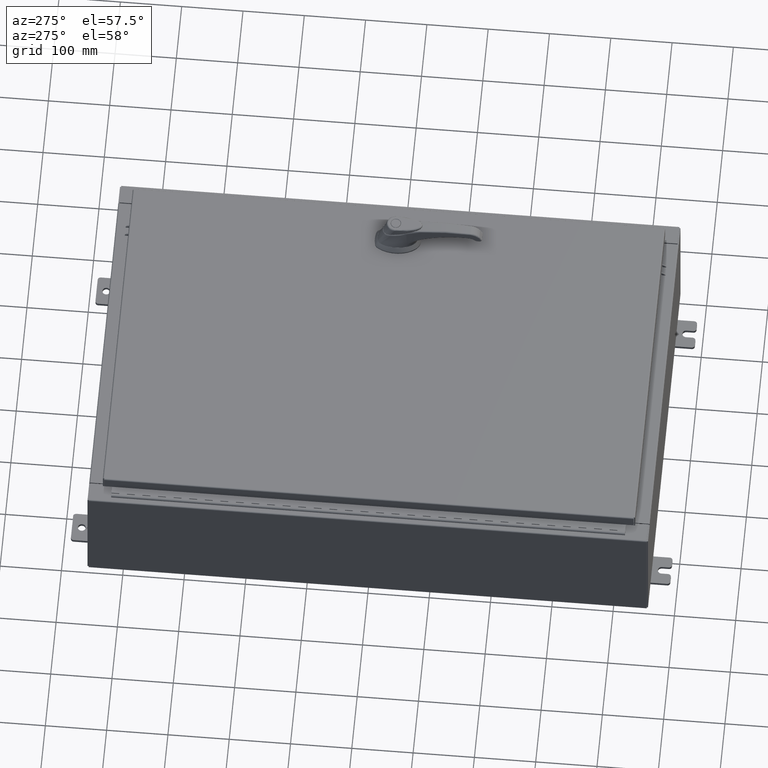
[diagram: clean part render]
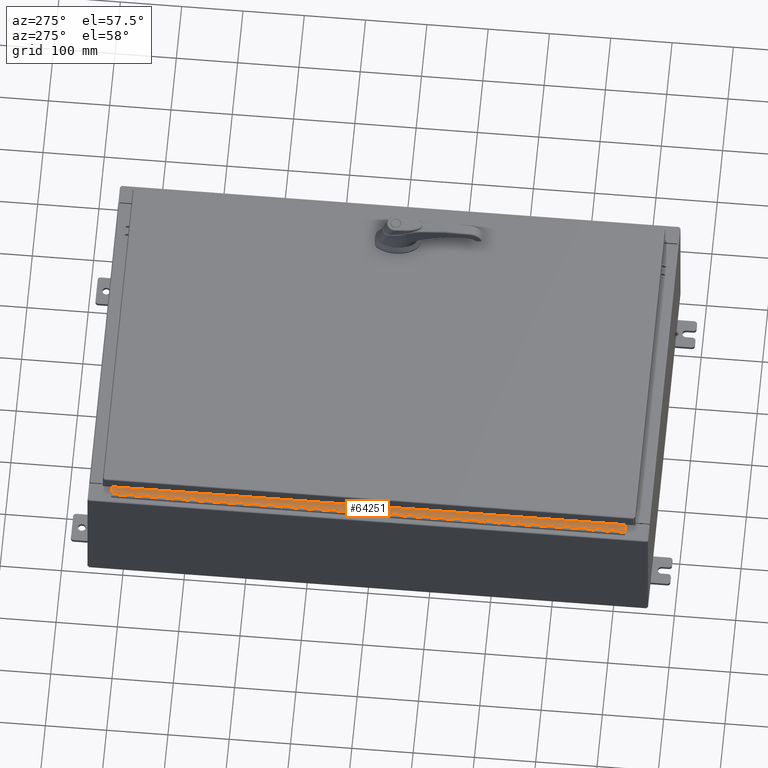
[diagram: same view with one face highlighted and labeled with its STEP entity id]
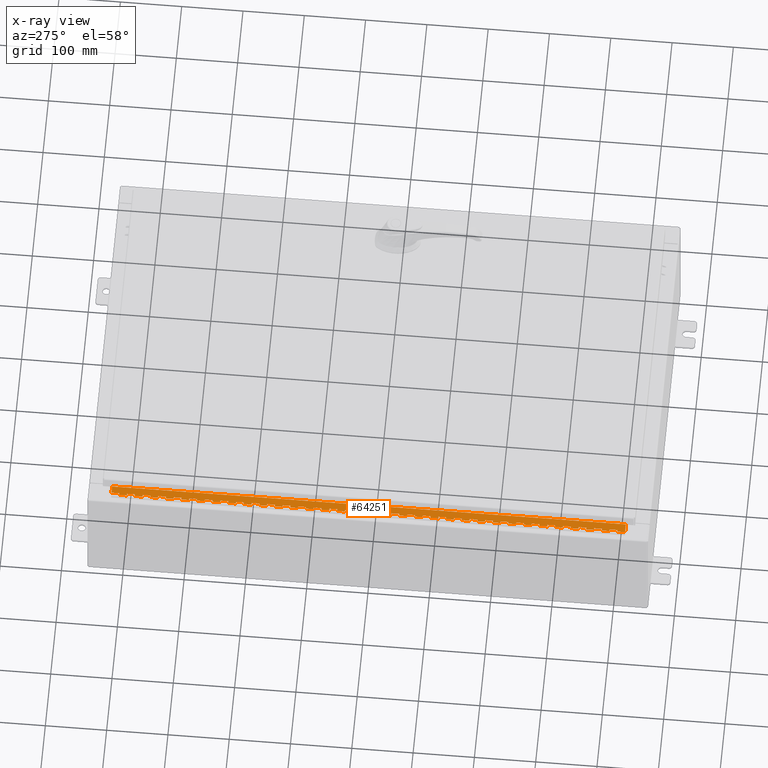
[diagram: x-ray of the same camera — body ghosted, the highlighted face saturated]
A machine part, auxiliary view. The second image highlights one B-rep face of the part: STEP entity #64251.
The next image is the same camera in x-ray: the body ghosted, the highlighted face saturated — about 0% of this face is hidden behind the body in this view.
In plain terms, the highlighted planar face has unit normal (-0, -0, 1).
Its self-contained STEP definition (entity closure, byte-faithful):
#28 = VERTEX_POINT ( 'NONE', #23456 ) ;
#58 = CARTESIAN_POINT ( 'NONE',  ( -0.6869999999999978300, 0.6754999999999996600, -11.99999999999999800 ) ) ;
#108 = ORIENTED_EDGE ( 'NONE', *, *, #73181, .F. ) ;
#199 = EDGE_CURVE ( 'NONE', #39008, #51069, #61846, .T. ) ;
#198 = EDGE_CURVE ( 'NONE', #120493, #98854, #7521, .T. ) ;
#318 = DIRECTION ( 'NONE',  ( 0.0000000000000000000, -0.0000000000000000000, -1.000000000000000000 ) ) ;
#335 = CARTESIAN_POINT ( 'NONE',  ( -0.6869999999999978300, 0.6754999999999996600, -11.50000000000000000 ) ) ;
#371 = CARTESIAN_POINT ( 'NONE',  ( -0.6869999999999982800, 0.5504999999999997700, -7.499999999999999100 ) ) ;
#416 = LINE ( 'NONE', #69025, #28264 ) ;
#607 = VERTEX_POINT ( 'NONE', #68904 ) ;
#726 = LINE ( 'NONE', #34819, #50820 ) ;
#838 = DIRECTION ( 'NONE',  ( 0.0000000000000000000, -0.0000000000000000000, -1.000000000000000000 ) ) ;
#1090 = CARTESIAN_POINT ( 'NONE',  ( -0.6869999999999982800, 0.5504999999999997700, -31.00000000000000000 ) ) ;
#1172 = ORIENTED_EDGE ( 'NONE', *, *, #26382, .F. ) ;
#1235 = EDGE_CURVE ( 'NONE', #23850, #39008, #26391, .T. ) ;
#1281 = DIRECTION ( 'NONE',  ( 0.0000000000000000000, 0.0000000000000000000, 1.000000000000000000 ) ) ;
#1292 = EDGE_CURVE ( 'NONE', #40843, #121195, #120704, .T. ) ;
#1505 = EDGE_CURVE ( 'NONE', #8259, #7606, #111855, .T. ) ;
#1758 = LINE ( 'NONE', #13858, #73865 ) ;
#1763 = LINE ( 'NONE', #29317, #98923 ) ;
#1925 = VERTEX_POINT ( 'NONE', #93586 ) ;
#1950 = LINE ( 'NONE', #43411, #49078 ) ;
#1964 = VERTEX_POINT ( 'NONE', #74662 ) ;
#2031 = CARTESIAN_POINT ( 'NONE',  ( -0.6869999999999982800, 0.5504999999999997700, -30.50000000000000400 ) ) ;
#2039 = VERTEX_POINT ( 'NONE', #87016 ) ;
#2072 = VERTEX_POINT ( 'NONE', #91585 ) ;
#2089 = LINE ( 'NONE', #12203, #99242 ) ;
#2186 = CARTESIAN_POINT ( 'NONE',  ( -0.6869999999999978300, 0.6754999999999996600, -19.00000000000000000 ) ) ;
#2233 = LINE ( 'NONE', #63842, #27121 ) ;
#2263 = LINE ( 'NONE', #79809, #21272 ) ;
#2329 = DIRECTION ( 'NONE',  ( 3.389037039080723100E-015, 1.000000000000000000, -0.0000000000000000000 ) ) ;
#2403 = CARTESIAN_POINT ( 'NONE',  ( -0.6869999999999982800, 0.5504999999999997700, -33.00000000000000000 ) ) ;
#2592 = CARTESIAN_POINT ( 'NONE',  ( -0.6869999999999973900, 0.8004999999999995500, -0.5000000000000000000 ) ) ;
#2649 = LINE ( 'NONE', #118925, #52763 ) ;
#2678 = CARTESIAN_POINT ( 'NONE',  ( -0.6869999999999978300, 0.6754999999999996600, -33.00000000000000000 ) ) ;
#2689 = LINE ( 'NONE', #57042, #96890 ) ;
#2794 = ORIENTED_EDGE ( 'NONE', *, *, #95463, .T. ) ;
#3090 = DIRECTION ( 'NONE',  ( 3.389037039080723100E-015, 1.000000000000000000, -0.0000000000000000000 ) ) ;
#3104 = VERTEX_POINT ( 'NONE', #36217 ) ;
#3275 = EDGE_CURVE ( 'NONE', #70742, #117799, #24642, .T. ) ;
#3286 = ORIENTED_EDGE ( 'NONE', *, *, #1292, .F. ) ;
#3366 = VERTEX_POINT ( 'NONE', #21730 ) ;
#3467 = VERTEX_POINT ( 'NONE', #116846 ) ;
#3597 = CARTESIAN_POINT ( 'NONE',  ( -0.6869999999999982800, 0.5504999999999997700, -24.50000000000000000 ) ) ;
#3677 = LINE ( 'NONE', #120794, #75780 ) ;
#3948 = ORIENTED_EDGE ( 'NONE', *, *, #34018, .F. ) ;
#4127 = LINE ( 'NONE', #72805, #54225 ) ;
#4260 = CARTESIAN_POINT ( 'NONE',  ( -0.6869999999999978300, 0.6754999999999996600, -4.000000000000000000 ) ) ;
#4424 = LINE ( 'NONE', #69978, #101580 ) ;
#4519 = ORIENTED_EDGE ( 'NONE', *, *, #66170, .F. ) ;
#4735 = EDGE_CURVE ( 'NONE', #79660, #95684, #71643, .T. ) ;
#5182 = ORIENTED_EDGE ( 'NONE', *, *, #116616, .F. ) ;
#5215 = ORIENTED_EDGE ( 'NONE', *, *, #18301, .T. ) ;
#5729 = EDGE_CURVE ( 'NONE', #105300, #102311, #45557, .T. ) ;
#5739 = ORIENTED_EDGE ( 'NONE', *, *, #97282, .F. ) ;
#5804 = VECTOR ( 'NONE', #87188, 39.37007874015748100 ) ;
#5844 = CARTESIAN_POINT ( 'NONE',  ( -0.6869999999999978300, 0.6754999999999996600, -16.00000000000000000 ) ) ;
#5845 = VECTOR ( 'NONE', #95403, 39.37007874015748100 ) ;
#6117 = ORIENTED_EDGE ( 'NONE', *, *, #93291, .F. ) ;
#6131 = DIRECTION ( 'NONE',  ( -3.389037039080723100E-015, -1.000000000000000000, 0.0000000000000000000 ) ) ;
#6171 = VERTEX_POINT ( 'NONE', #86761 ) ;
#6294 = CARTESIAN_POINT ( 'NONE',  ( -0.6869999999999978300, 0.6754999999999996600, -33.00000000000000000 ) ) ;
#6329 = LINE ( 'NONE', #97948, #78435 ) ;
#6332 = CARTESIAN_POINT ( 'NONE',  ( -0.6869999999999978300, 0.6754999999999996600, -14.99999999999999800 ) ) ;
#6640 = EDGE_CURVE ( 'NONE', #43095, #21644, #94196, .T. ) ;
#7151 = VECTOR ( 'NONE', #63102, 39.37007874015748100 ) ;
#7266 = VERTEX_POINT ( 'NONE', #18603 ) ;
#7273 = ORIENTED_EDGE ( 'NONE', *, *, #47994, .F. ) ;
#7437 = CARTESIAN_POINT ( 'NONE',  ( -0.6869999999999978300, 0.6754999999999996600, -28.99999999999999600 ) ) ;
#7521 = LINE ( 'NONE', #33375, #30795 ) ;
#7606 = VERTEX_POINT ( 'NONE', #4260 ) ;
#7830 = LINE ( 'NONE', #20479, #32821 ) ;
#7923 = VECTOR ( 'NONE', #55256, 39.37007874015748100 ) ;
#8009 = VECTOR ( 'NONE', #96482, 39.37007874015748100 ) ;
#8076 = CARTESIAN_POINT ( 'NONE',  ( -0.6869999999999973900, 0.8004999999999995500, -28.99999999999999600 ) ) ;
#8093 = EDGE_CURVE ( 'NONE', #33282, #25217, #74842, .T. ) ;
#8110 = CARTESIAN_POINT ( 'NONE',  ( -0.6869999999999982800, 0.5504999999999997700, -8.500000000000000000 ) ) ;
#8138 = DIRECTION ( 'NONE',  ( 0.0000000000000000000, -0.0000000000000000000, -1.000000000000000000 ) ) ;
#8254 = VERTEX_POINT ( 'NONE', #42357 ) ;
#8259 = VERTEX_POINT ( 'NONE', #99143 ) ;
#8430 = CARTESIAN_POINT ( 'NONE',  ( -0.6869999999999982800, 0.5504999999999997700, -22.50000000000000000 ) ) ;
#8638 = DIRECTION ( 'NONE',  ( -3.389037039080723100E-015, -1.000000000000000000, 0.0000000000000000000 ) ) ;
#8728 = CARTESIAN_POINT ( 'NONE',  ( -0.6869999999999982800, 0.5504999999999997700, -2.000000000000000000 ) ) ;
#8870 = VECTOR ( 'NONE', #119769, 39.37007874015748100 ) ;
#8977 = VECTOR ( 'NONE', #6131, 39.37007874015748100 ) ;
#9348 = EDGE_CURVE ( 'NONE', #121920, #110053, #82046, .T. ) ;
#9586 = CARTESIAN_POINT ( 'NONE',  ( -0.6869999999999973900, 0.8004999999999995500, -12.49999999999999800 ) ) ;
#9744 = ORIENTED_EDGE ( 'NONE', *, *, #36669, .F. ) ;
#9961 = CARTESIAN_POINT ( 'NONE',  ( -0.6869999999999978300, 0.6754999999999996600, -26.50000000000000400 ) ) ;
#10232 = ORIENTED_EDGE ( 'NONE', *, *, #39290, .T. ) ;
#10240 = CARTESIAN_POINT ( 'NONE',  ( -0.6869999999999978300, 0.6754999999999996600, -28.50000000000000000 ) ) ;
#10304 = DIRECTION ( 'NONE',  ( 3.389037039080723100E-015, 1.000000000000000000, -0.0000000000000000000 ) ) ;
#10326 = ORIENTED_EDGE ( 'NONE', *, *, #83450, .F. ) ;
#10382 = VERTEX_POINT ( 'NONE', #9961 ) ;
#10577 = CARTESIAN_POINT ( 'NONE',  ( -0.6869999999999973900, 0.8004999999999995500, -10.50000000000000000 ) ) ;
#10593 = LINE ( 'NONE', #21012, #107769 ) ;
#10736 = CARTESIAN_POINT ( 'NONE',  ( -0.6869999999999978300, 0.6754999999999996600, -27.50000000000000000 ) ) ;
#10791 = CARTESIAN_POINT ( 'NONE',  ( -0.6869999999999973900, 0.8004999999999995500, -4.500000000000000000 ) ) ;
#10871 = VECTOR ( 'NONE', #98448, 39.37007874015748100 ) ;
#10964 = ORIENTED_EDGE ( 'NONE', *, *, #46650, .F. ) ;
#11389 = VECTOR ( 'NONE', #88249, 39.37007874015748100 ) ;
#11454 = VERTEX_POINT ( 'NONE', #18303 ) ;
#11513 = VECTOR ( 'NONE', #73888, 39.37007874015748100 ) ;
#11617 = CARTESIAN_POINT ( 'NONE',  ( -0.6869999999999973900, 0.8004999999999995500, -2.500000000000000000 ) ) ;
#11838 = LINE ( 'NONE', #110288, #8870 ) ;
#11895 = CARTESIAN_POINT ( 'NONE',  ( -0.6869999999999978300, 0.6754999999999996600, -12.99999999999999800 ) ) ;
#12042 = DIRECTION ( 'NONE',  ( -3.389037039080723100E-015, -1.000000000000000000, 0.0000000000000000000 ) ) ;
#12046 = LINE ( 'NONE', #44728, #109219 ) ;
#12153 = VECTOR ( 'NONE', #8638, 39.37007874015748100 ) ;
#12188 = LINE ( 'NONE', #55106, #59361 ) ;
#12203 = CARTESIAN_POINT ( 'NONE',  ( -0.6869999999999978300, 0.6754999999999996600, -33.00000000000000000 ) ) ;
#12238 = ORIENTED_EDGE ( 'NONE', *, *, #61605, .F. ) ;
#12342 = LINE ( 'NONE', #25985, #59509 ) ;
#12355 = DIRECTION ( 'NONE',  ( 3.389037039080723100E-015, 1.000000000000000000, -0.0000000000000000000 ) ) ;
#12539 = ORIENTED_EDGE ( 'NONE', *, *, #50542, .F. ) ;
#12548 = ORIENTED_EDGE ( 'NONE', *, *, #68054, .F. ) ;
#12585 = EDGE_CURVE ( 'NONE', #39739, #70742, #18213, .T. ) ;
#12839 = ORIENTED_EDGE ( 'NONE', *, *, #91059, .F. ) ;
#12953 = CARTESIAN_POINT ( 'NONE',  ( -0.6869999999999978300, 0.6754999999999996600, -33.00000000000000000 ) ) ;
#13139 = EDGE_CURVE ( 'NONE', #62015, #3366, #63945, .T. ) ;
#13166 = CARTESIAN_POINT ( 'NONE',  ( -0.6869999999999978300, 0.6754999999999996600, -33.00000000000000000 ) ) ;
#13256 = ORIENTED_EDGE ( 'NONE', *, *, #57201, .F. ) ;
#13363 = DIRECTION ( 'NONE',  ( 0.0000000000000000000, 0.0000000000000000000, 1.000000000000000000 ) ) ;
#13429 = VERTEX_POINT ( 'NONE', #14338 ) ;
#13498 = CARTESIAN_POINT ( 'NONE',  ( -0.6869999999999973900, 0.8004999999999995500, -7.000000000000000000 ) ) ;
#13858 = CARTESIAN_POINT ( 'NONE',  ( -0.6869999999999982800, 0.5504999999999997700, -19.50000000000000000 ) ) ;
#13957 = LINE ( 'NONE', #80476, #36038 ) ;
#13971 = VERTEX_POINT ( 'NONE', #42434 ) ;
#13973 = DIRECTION ( 'NONE',  ( -3.389037039080723100E-015, -1.000000000000000000, 0.0000000000000000000 ) ) ;
#14163 = LINE ( 'NONE', #48422, #86368 ) ;
#14188 = ORIENTED_EDGE ( 'NONE', *, *, #119147, .F. ) ;
#14242 = VERTEX_POINT ( 'NONE', #85975 ) ;
#14338 = CARTESIAN_POINT ( 'NONE',  ( -0.6869999999999982800, 0.5504999999999997700, -28.00000000000000000 ) ) ;
#14386 = CARTESIAN_POINT ( 'NONE',  ( -0.6869999999999982800, 0.5504999999999997700, -28.99999999999999600 ) ) ;
#14398 = LINE ( 'NONE', #15909, #61588 ) ;
#14414 = EDGE_CURVE ( 'NONE', #118161, #62594, #100513, .T. ) ;
#14444 = LINE ( 'NONE', #26867, #11513 ) ;
#14523 = LINE ( 'NONE', #27437, #30660 ) ;
#14529 = LINE ( 'NONE', #93547, #111714 ) ;
#14589 = ORIENTED_EDGE ( 'NONE', *, *, #55921, .F. ) ;
#15103 = VECTOR ( 'NONE', #63780, 39.37007874015748100 ) ;
#15189 = VERTEX_POINT ( 'NONE', #27542 ) ;
#15386 = CARTESIAN_POINT ( 'NONE',  ( -0.6869999999999982800, 0.5504999999999997700, -3.500000000000000000 ) ) ;
#15589 = CARTESIAN_POINT ( 'NONE',  ( -0.6869999999999973900, 0.8004999999999995500, -18.50000000000000000 ) ) ;
#15868 = VERTEX_POINT ( 'NONE', #58393 ) ;
#15901 = ORIENTED_EDGE ( 'NONE', *, *, #24270, .F. ) ;
#15909 = CARTESIAN_POINT ( 'NONE',  ( -0.6869999999999973900, 0.8004999999999995500, -8.500000000000000000 ) ) ;
#16113 = ORIENTED_EDGE ( 'NONE', *, *, #16416, .F. ) ;
#16130 = EDGE_CURVE ( 'NONE', #87014, #64513, #33997, .T. ) ;
#16185 = VERTEX_POINT ( 'NONE', #110179 ) ;
#16221 = LINE ( 'NONE', #80800, #41315 ) ;
#16237 = CARTESIAN_POINT ( 'NONE',  ( -0.6869999999999978300, 0.6754999999999996600, -23.99999999999999600 ) ) ;
#16246 = CARTESIAN_POINT ( 'NONE',  ( -0.6869999999999973900, 0.8004999999999995500, -2.000000000000000000 ) ) ;
#16250 = VERTEX_POINT ( 'NONE', #17101 ) ;
#16355 = EDGE_CURVE ( 'NONE', #27366, #98854, #28002, .T. ) ;
#16416 = EDGE_CURVE ( 'NONE', #116405, #85609, #116428, .T. ) ;
#16552 = VERTEX_POINT ( 'NONE', #29812 ) ;
#16574 = DIRECTION ( 'NONE',  ( 0.0000000000000000000, -0.0000000000000000000, -1.000000000000000000 ) ) ;
#16625 = VECTOR ( 'NONE', #13363, 39.37007874015748100 ) ;
#16738 = ORIENTED_EDGE ( 'NONE', *, *, #16355, .F. ) ;
#16882 = LINE ( 'NONE', #56146, #89139 ) ;
#16983 = VECTOR ( 'NONE', #30347, 39.37007874015748100 ) ;
#16994 = LINE ( 'NONE', #100696, #42113 ) ;
#17101 = CARTESIAN_POINT ( 'NONE',  ( -0.6869999999999978300, 0.6754999999999996600, -17.00000000000000000 ) ) ;
#17145 = VECTOR ( 'NONE', #318, 39.37007874015748100 ) ;
#17161 = CARTESIAN_POINT ( 'NONE',  ( -0.6869999999999982800, 0.5504999999999997700, -8.500000000000000000 ) ) ;
#17351 = CARTESIAN_POINT ( 'NONE',  ( -0.6869999999999978300, 0.6754999999999996600, -13.50000000000000000 ) ) ;
#17666 = VECTOR ( 'NONE', #29637, 39.37007874015748100 ) ;
#17732 = CARTESIAN_POINT ( 'NONE',  ( -0.6869999999999973900, 0.8004999999999995500, -23.00000000000000000 ) ) ;
#17759 = EDGE_CURVE ( 'NONE', #108111, #40843, #85364, .T. ) ;
#17864 = VERTEX_POINT ( 'NONE', #100809 ) ;
#17952 = DIRECTION ( 'NONE',  ( -3.389037039080723100E-015, -1.000000000000000000, 0.0000000000000000000 ) ) ;
#18213 = LINE ( 'NONE', #55390, #118423 ) ;
#18262 = EDGE_CURVE ( 'NONE', #31648, #23850, #80864, .T. ) ;
#18301 = EDGE_CURVE ( 'NONE', #33975, #91694, #100023, .T. ) ;
#18303 = CARTESIAN_POINT ( 'NONE',  ( -0.6869999999999982800, 0.5504999999999997700, -5.000000000000000000 ) ) ;
#18550 = ORIENTED_EDGE ( 'NONE', *, *, #85083, .T. ) ;
#18559 = DIRECTION ( 'NONE',  ( 0.0000000000000000000, 0.0000000000000000000, 1.000000000000000000 ) ) ;
#18603 = CARTESIAN_POINT ( 'NONE',  ( -0.6869999999999978300, 0.6754999999999996600, -29.99999999999999600 ) ) ;
#18688 = CARTESIAN_POINT ( 'NONE',  ( -0.6869999999999982800, 0.5504999999999997700, -20.50000000000000400 ) ) ;
#18855 = VECTOR ( 'NONE', #1281, 39.37007874015748100 ) ;
#18934 = LINE ( 'NONE', #85398, #116200 ) ;
#19005 = EDGE_CURVE ( 'NONE', #51861, #95057, #108740, .T. ) ;
#19226 = ORIENTED_EDGE ( 'NONE', *, *, #110972, .F. ) ;
#19675 = VECTOR ( 'NONE', #30232, 39.37007874015748100 ) ;
#19728 = EDGE_CURVE ( 'NONE', #78992, #70346, #95384, .T. ) ;
#19731 = VECTOR ( 'NONE', #59762, 39.37007874015748100 ) ;
#19859 = EDGE_CURVE ( 'NONE', #79660, #59198, #108622, .T. ) ;
#20099 = EDGE_CURVE ( 'NONE', #13971, #3104, #90928, .T. ) ;
#20239 = CARTESIAN_POINT ( 'NONE',  ( -0.6869999999999982800, 0.5504999999999997700, -10.00000000000000000 ) ) ;
#20479 = CARTESIAN_POINT ( 'NONE',  ( -0.6869999999999978300, 0.6754999999999996600, -33.00000000000000000 ) ) ;
#20520 = ORIENTED_EDGE ( 'NONE', *, *, #87807, .F. ) ;
#20614 = VECTOR ( 'NONE', #104199, 39.37007874015748100 ) ;
#20626 = EDGE_CURVE ( 'NONE', #8254, #76118, #120283, .T. ) ;
#20629 = ORIENTED_EDGE ( 'NONE', *, *, #52465, .T. ) ;
#20783 = CARTESIAN_POINT ( 'NONE',  ( -0.6869999999999973900, 0.8004999999999995500, -23.50000000000000000 ) ) ;
#21012 = CARTESIAN_POINT ( 'NONE',  ( -0.6869999999999973900, 0.8004999999999995500, -17.50000000000000000 ) ) ;
#21272 = VECTOR ( 'NONE', #13973, 39.37007874015748100 ) ;
#21468 = DIRECTION ( 'NONE',  ( -3.389037039080723100E-015, -1.000000000000000000, 0.0000000000000000000 ) ) ;
#21644 = VERTEX_POINT ( 'NONE', #112372 ) ;
#21645 = CARTESIAN_POINT ( 'NONE',  ( -0.6869999999999978300, 0.6754999999999996600, -16.50000000000000000 ) ) ;
#21684 = ORIENTED_EDGE ( 'NONE', *, *, #61172, .F. ) ;
#21690 = VECTOR ( 'NONE', #29997, 39.37007874015748100 ) ;
#21730 = CARTESIAN_POINT ( 'NONE',  ( -0.6869999999999978300, 0.6754999999999996600, -21.00000000000000000 ) ) ;
#21744 = VECTOR ( 'NONE', #12355, 39.37007874015748100 ) ;
#21906 = CARTESIAN_POINT ( 'NONE',  ( -0.6869999999999982800, 0.5504999999999997700, -6.499999999999999100 ) ) ;
#22221 = CARTESIAN_POINT ( 'NONE',  ( -0.6869999999999978300, 0.6754999999999996600, -12.49999999999999800 ) ) ;
#23046 = VERTEX_POINT ( 'NONE', #46937 ) ;
#23108 = EDGE_CURVE ( 'NONE', #43827, #43095, #71598, .T. ) ;
#23326 = DIRECTION ( 'NONE',  ( 0.0000000000000000000, -0.0000000000000000000, -1.000000000000000000 ) ) ;
#23394 = DIRECTION ( 'NONE',  ( 3.369016658928398200E-015, 1.000000000000000000, 0.0000000000000000000 ) ) ;
#23456 = CARTESIAN_POINT ( 'NONE',  ( -0.6869999999999982800, 0.5504999999999997700, -16.00000000000000000 ) ) ;
#23463 = CARTESIAN_POINT ( 'NONE',  ( -0.6869999999999978300, 0.6754999999999996600, -1.499999999999999800 ) ) ;
#23850 = VERTEX_POINT ( 'NONE', #55460 ) ;
#23944 = VECTOR ( 'NONE', #65695, 39.37007874015748100 ) ;
#24209 = LINE ( 'NONE', #76664, #71460 ) ;
#24270 = EDGE_CURVE ( 'NONE', #55418, #16185, #53799, .T. ) ;
#24313 = VECTOR ( 'NONE', #42342, 39.37007874015748100 ) ;
#24406 = VECTOR ( 'NONE', #119807, 39.37007874015748100 ) ;
#24616 = LINE ( 'NONE', #64867, #49803 ) ;
#24623 = CARTESIAN_POINT ( 'NONE',  ( -0.6869999999999978300, 0.6754999999999996600, -24.99999999999999600 ) ) ;
#24642 = LINE ( 'NONE', #48644, #21690 ) ;
#24786 = EDGE_CURVE ( 'NONE', #32822, #56960, #90500, .T. ) ;
#25002 = DIRECTION ( 'NONE',  ( -3.389037039080723100E-015, -1.000000000000000000, 0.0000000000000000000 ) ) ;
#25066 = CARTESIAN_POINT ( 'NONE',  ( -0.6869999999999982800, 0.5504999999999997700, -21.00000000000000000 ) ) ;
#25148 = ORIENTED_EDGE ( 'NONE', *, *, #89039, .F. ) ;
#25172 = CARTESIAN_POINT ( 'NONE',  ( -0.6869999999999998300, 0.07549999999999991400, -33.00000000000000000 ) ) ;
#25217 = VERTEX_POINT ( 'NONE', #107241 ) ;
#25421 = CARTESIAN_POINT ( 'NONE',  ( -0.6869999999999978300, 0.6754999999999996600, -33.00000000000000000 ) ) ;
#25639 = DIRECTION ( 'NONE',  ( 3.389037039080723100E-015, 1.000000000000000000, -0.0000000000000000000 ) ) ;
#25985 = CARTESIAN_POINT ( 'NONE',  ( -0.6869999999999973900, 0.8004999999999995500, -14.00000000000000000 ) ) ;
#26091 = VERTEX_POINT ( 'NONE', #58 ) ;
#26126 = CARTESIAN_POINT ( 'NONE',  ( -0.6870000000000022800, -0.6245000000000003900, 0.0000000000000000000 ) ) ;
#26144 = ORIENTED_EDGE ( 'NONE', *, *, #9348, .T. ) ;
#26198 = EDGE_CURVE ( 'NONE', #31648, #73968, #7830, .T. ) ;
#26382 = EDGE_CURVE ( 'NONE', #107431, #111848, #71158, .T. ) ;
#26391 = LINE ( 'NONE', #3597, #73620 ) ;
#26435 = VECTOR ( 'NONE', #72977, 39.37007874015748100 ) ;
#26443 = ORIENTED_EDGE ( 'NONE', *, *, #36903, .T. ) ;
#26725 = EDGE_CURVE ( 'NONE', #58842, #28317, #416, .T. ) ;
#26867 = CARTESIAN_POINT ( 'NONE',  ( -0.6869999999999973900, 0.8004999999999995500, -8.000000000000000000 ) ) ;
#26969 = CARTESIAN_POINT ( 'NONE',  ( -0.6869999999999978300, 0.6754999999999996600, -1.000000000000000000 ) ) ;
#26975 = CARTESIAN_POINT ( 'NONE',  ( -0.6869999999999982800, 0.5504999999999997700, -23.99999999999999600 ) ) ;
#26987 = ORIENTED_EDGE ( 'NONE', *, *, #116755, .T. ) ;
#27121 = VECTOR ( 'NONE', #91769, 39.37007874015748100 ) ;
#27230 = DIRECTION ( 'NONE',  ( 0.0000000000000000000, 0.0000000000000000000, 1.000000000000000000 ) ) ;
#27279 = ORIENTED_EDGE ( 'NONE', *, *, #26725, .F. ) ;
#27328 = CARTESIAN_POINT ( 'NONE',  ( -0.6869999999999978300, 0.6754999999999996600, -23.00000000000000000 ) ) ;
#27366 = VERTEX_POINT ( 'NONE', #54663 ) ;
#27437 = CARTESIAN_POINT ( 'NONE',  ( -0.6869999999999982800, 0.5504999999999997700, -26.50000000000000400 ) ) ;
#27542 = CARTESIAN_POINT ( 'NONE',  ( -0.6869999999999978300, 0.6754999999999996600, -17.99999999999999600 ) ) ;
#27580 = DIRECTION ( 'NONE',  ( 0.0000000000000000000, 0.0000000000000000000, 1.000000000000000000 ) ) ;
#27597 = DIRECTION ( 'NONE',  ( 3.389037039080723100E-015, 1.000000000000000000, -0.0000000000000000000 ) ) ;
#27726 = VERTEX_POINT ( 'NONE', #50451 ) ;
#27874 = VECTOR ( 'NONE', #32853, 39.37007874015748100 ) ;
#27917 = CARTESIAN_POINT ( 'NONE',  ( -0.6869999999999978300, 0.6754999999999996600, -20.00000000000000000 ) ) ;
#28002 = LINE ( 'NONE', #74756, #119373 ) ;
#28264 = VECTOR ( 'NONE', #31066, 39.37007874015748100 ) ;
#28317 = VERTEX_POINT ( 'NONE', #41613 ) ;
#28326 = ORIENTED_EDGE ( 'NONE', *, *, #29670, .T. ) ;
#28859 = CARTESIAN_POINT ( 'NONE',  ( -0.6869999999999973900, 0.8004999999999995500, -19.50000000000000000 ) ) ;
#29317 = CARTESIAN_POINT ( 'NONE',  ( -0.6869999999999978300, 0.6754999999999996600, -33.00000000000000000 ) ) ;
#29422 = EDGE_CURVE ( 'NONE', #37670, #81541, #41722, .T. ) ;
#29637 = DIRECTION ( 'NONE',  ( -3.389037039080723100E-015, -1.000000000000000000, 0.0000000000000000000 ) ) ;
#29670 = EDGE_CURVE ( 'NONE', #32822, #45710, #1950, .T. ) ;
#29717 = VERTEX_POINT ( 'NONE', #25172 ) ;
#29812 = CARTESIAN_POINT ( 'NONE',  ( -0.6869999999999978300, 0.6754999999999996600, -14.49999999999999800 ) ) ;
#29958 = DIRECTION ( 'NONE',  ( 0.0000000000000000000, 0.0000000000000000000, 1.000000000000000000 ) ) ;
#29997 = DIRECTION ( 'NONE',  ( 3.389037039080723100E-015, 1.000000000000000000, -0.0000000000000000000 ) ) ;
#30182 = VERTEX_POINT ( 'NONE', #20239 ) ;
#30232 = DIRECTION ( 'NONE',  ( 3.389037039080723100E-015, 1.000000000000000000, -0.0000000000000000000 ) ) ;
#30306 = DIRECTION ( 'NONE',  ( 0.0000000000000000000, -0.0000000000000000000, -1.000000000000000000 ) ) ;
#30347 = DIRECTION ( 'NONE',  ( -3.389037039080723100E-015, -1.000000000000000000, 0.0000000000000000000 ) ) ;
#30481 = CARTESIAN_POINT ( 'NONE',  ( -0.6869999999999978300, 0.6754999999999996600, -21.50000000000000400 ) ) ;
#30566 = CARTESIAN_POINT ( 'NONE',  ( -0.6869999999999973900, 0.8004999999999995500, -31.00000000000000000 ) ) ;
#30656 = ORIENTED_EDGE ( 'NONE', *, *, #90104, .T. ) ;
#30660 = VECTOR ( 'NONE', #46092, 39.37007874015748100 ) ;
#30758 = VECTOR ( 'NONE', #116922, 39.37007874015748100 ) ;
#30765 = ORIENTED_EDGE ( 'NONE', *, *, #65133, .F. ) ;
#30795 = VECTOR ( 'NONE', #27230, 39.37007874015748100 ) ;
#30882 = LINE ( 'NONE', #98739, #27874 ) ;
#30922 = VERTEX_POINT ( 'NONE', #36370 ) ;
#30965 = EDGE_CURVE ( 'NONE', #32351, #35598, #100415, .T. ) ;
#31034 = LINE ( 'NONE', #106808, #59124 ) ;
#31063 = ORIENTED_EDGE ( 'NONE', *, *, #54812, .F. ) ;
#31066 = DIRECTION ( 'NONE',  ( 0.0000000000000000000, -0.0000000000000000000, -1.000000000000000000 ) ) ;
#31104 = EDGE_CURVE ( 'NONE', #15868, #1964, #113601, .T. ) ;
#31139 = CARTESIAN_POINT ( 'NONE',  ( -0.6869999999999978300, 0.6754999999999996600, -33.00000000000000000 ) ) ;
#31220 = CARTESIAN_POINT ( 'NONE',  ( -0.6869999999999973900, 0.8004999999999995500, -32.00000000000000000 ) ) ;
#31505 = ORIENTED_EDGE ( 'NONE', *, *, #8093, .F. ) ;
#31648 = VERTEX_POINT ( 'NONE', #86267 ) ;
#31716 = CARTESIAN_POINT ( 'NONE',  ( -0.6869999999999978300, 0.6754999999999996600, -8.000000000000000000 ) ) ;
#31743 = CARTESIAN_POINT ( 'NONE',  ( -0.6869999999999973900, 0.8004999999999995500, -1.000000000000000000 ) ) ;
#31782 = CARTESIAN_POINT ( 'NONE',  ( -0.6869999999999978300, 0.6754999999999996600, -33.00000000000000000 ) ) ;
#32000 = LINE ( 'NONE', #8430, #76192 ) ;
#32028 = CARTESIAN_POINT ( 'NONE',  ( -0.6869999999999982800, 0.5504999999999997700, -7.499999999999999100 ) ) ;
#32127 = EDGE_CURVE ( 'NONE', #2039, #6171, #101709, .T. ) ;
#32169 = ORIENTED_EDGE ( 'NONE', *, *, #115851, .T. ) ;
#32262 = EDGE_CURVE ( 'NONE', #82339, #117835, #95798, .T. ) ;
#32351 = VERTEX_POINT ( 'NONE', #67230 ) ;
#32356 = EDGE_CURVE ( 'NONE', #44959, #63434, #73716, .T. ) ;
#32505 = PLANE ( 'NONE',  #54690 ) ;
#32729 = VERTEX_POINT ( 'NONE', #37002 ) ;
#32821 = VECTOR ( 'NONE', #29958, 39.37007874015748100 ) ;
#32822 = VERTEX_POINT ( 'NONE', #10240 ) ;
#32853 = DIRECTION ( 'NONE',  ( 0.0000000000000000000, 0.0000000000000000000, 1.000000000000000000 ) ) ;
#33282 = VERTEX_POINT ( 'NONE', #103165 ) ;
#33375 = CARTESIAN_POINT ( 'NONE',  ( -0.6869999999999978300, 0.6754999999999996600, -33.00000000000000000 ) ) ;
#33385 = ORIENTED_EDGE ( 'NONE', *, *, #18262, .F. ) ;
#33467 = EDGE_CURVE ( 'NONE', #79171, #26091, #44096, .T. ) ;
#33887 = LINE ( 'NONE', #97841, #100177 ) ;
#33975 = VERTEX_POINT ( 'NONE', #17351 ) ;
#33997 = LINE ( 'NONE', #81415, #8977 ) ;
#34003 = CARTESIAN_POINT ( 'NONE',  ( -0.6869999999999973900, 0.8004999999999995500, -22.00000000000000000 ) ) ;
#34018 = EDGE_CURVE ( 'NONE', #1964, #81541, #89681, .T. ) ;
#34031 = EDGE_CURVE ( 'NONE', #51861, #3366, #14529, .T. ) ;
#34308 = DIRECTION ( 'NONE',  ( 0.0000000000000000000, 0.0000000000000000000, 1.000000000000000000 ) ) ;
#34502 = VERTEX_POINT ( 'NONE', #35331 ) ;
#34523 = ORIENTED_EDGE ( 'NONE', *, *, #79642, .F. ) ;
#34669 = EDGE_CURVE ( 'NONE', #14242, #50008, #76296, .T. ) ;
#34819 = CARTESIAN_POINT ( 'NONE',  ( -0.6869999999999998300, 0.07549999999999991400, -33.00000000000000000 ) ) ;
#34860 = VECTOR ( 'NONE', #121818, 39.37007874015748100 ) ;
#35017 = EDGE_CURVE ( 'NONE', #29717, #60211, #24616, .T. ) ;
#35201 = VECTOR ( 'NONE', #83378, 39.37007874015748100 ) ;
#35209 = ORIENTED_EDGE ( 'NONE', *, *, #17759, .F. ) ;
#35285 = DIRECTION ( 'NONE',  ( 3.369016658928398200E-015, 1.000000000000000000, 0.0000000000000000000 ) ) ;
#35331 = CARTESIAN_POINT ( 'NONE',  ( -0.6869999999999978300, 0.6754999999999996600, -30.50000000000000400 ) ) ;
#35598 = VERTEX_POINT ( 'NONE', #98887 ) ;
#35689 = EDGE_CURVE ( 'NONE', #11454, #58014, #57252, .T. ) ;
#35836 = VECTOR ( 'NONE', #82039, 39.37007874015748100 ) ;
#35909 = ORIENTED_EDGE ( 'NONE', *, *, #74367, .F. ) ;
#36038 = VECTOR ( 'NONE', #62041, 39.37007874015748100 ) ;
#36088 = VECTOR ( 'NONE', #12042, 39.37007874015748100 ) ;
#36176 = EDGE_CURVE ( 'NONE', #13429, #45710, #83652, .T. ) ;
#36217 = CARTESIAN_POINT ( 'NONE',  ( -0.6869999999999982800, 0.5504999999999997700, -12.99999999999999800 ) ) ;
#36302 = VERTEX_POINT ( 'NONE', #47653 ) ;
#36370 = CARTESIAN_POINT ( 'NONE',  ( -0.6869999999999978300, 0.6754999999999996600, -19.50000000000000000 ) ) ;
#36411 = CARTESIAN_POINT ( 'NONE',  ( -0.6869999999999982800, 0.5504999999999997700, -1.499999999999999800 ) ) ;
#36576 = CARTESIAN_POINT ( 'NONE',  ( -0.6869999999999982800, 0.5504999999999997700, -25.50000000000000400 ) ) ;
#36669 = EDGE_CURVE ( 'NONE', #95684, #53575, #32000, .T. ) ;
#36903 = EDGE_CURVE ( 'NONE', #30922, #39658, #111494, .T. ) ;
#36929 = VERTEX_POINT ( 'NONE', #59482 ) ;
#37002 = CARTESIAN_POINT ( 'NONE',  ( -0.6869999999999978300, 0.6754999999999996600, -31.50000000000000400 ) ) ;
#37154 = DIRECTION ( 'NONE',  ( -3.389037039080723100E-015, -1.000000000000000000, 0.0000000000000000000 ) ) ;
#37178 = VERTEX_POINT ( 'NONE', #10736 ) ;
#37670 = VERTEX_POINT ( 'NONE', #67442 ) ;
#37757 = DIRECTION ( 'NONE',  ( 0.0000000000000000000, -0.0000000000000000000, -1.000000000000000000 ) ) ;
#37967 = CARTESIAN_POINT ( 'NONE',  ( -0.6869999999999978300, 0.6754999999999996600, -17.50000000000000000 ) ) ;
#38153 = DIRECTION ( 'NONE',  ( 3.389037039080723100E-015, 1.000000000000000000, -0.0000000000000000000 ) ) ;
#38159 = LINE ( 'NONE', #28859, #110279 ) ;
#38382 = CARTESIAN_POINT ( 'NONE',  ( -0.6869999999999973900, 0.8004999999999995500, -25.50000000000000400 ) ) ;
#38485 = DIRECTION ( 'NONE',  ( 0.0000000000000000000, -0.0000000000000000000, -1.000000000000000000 ) ) ;
#39008 = VERTEX_POINT ( 'NONE', #89131 ) ;
#39189 = LINE ( 'NONE', #18688, #45107 ) ;
#39290 = EDGE_CURVE ( 'NONE', #14242, #117799, #97961, .T. ) ;
#39428 = EDGE_CURVE ( 'NONE', #32729, #36929, #16882, .T. ) ;
#39658 = VERTEX_POINT ( 'NONE', #2186 ) ;
#39739 = VERTEX_POINT ( 'NONE', #58990 ) ;
#39912 = CARTESIAN_POINT ( 'NONE',  ( -0.6869999999999973900, 0.8004999999999995500, -15.50000000000000000 ) ) ;
#39929 = LINE ( 'NONE', #63607, #92926 ) ;
#40101 = ORIENTED_EDGE ( 'NONE', *, *, #101864, .T. ) ;
#40351 = LINE ( 'NONE', #48880, #43324 ) ;
#40388 = LINE ( 'NONE', #40486, #109560 ) ;
#40486 = CARTESIAN_POINT ( 'NONE',  ( -0.6869999999999973900, 0.8004999999999995500, -1.499999999999999800 ) ) ;
#40589 = EDGE_CURVE ( 'NONE', #30182, #48083, #40351, .T. ) ;
#40667 = VECTOR ( 'NONE', #92278, 39.37007874015748100 ) ;
#40731 = EDGE_CURVE ( 'NONE', #23046, #21644, #31034, .T. ) ;
#40843 = VERTEX_POINT ( 'NONE', #61177 ) ;
#40844 = VECTOR ( 'NONE', #64484, 39.37007874015748100 ) ;
#40940 = ORIENTED_EDGE ( 'NONE', *, *, #26198, .T. ) ;
#40998 = LINE ( 'NONE', #8110, #88141 ) ;
#41021 = LINE ( 'NONE', #57694, #18855 ) ;
#41315 = VECTOR ( 'NONE', #52901, 39.37007874015748100 ) ;
#41463 = ORIENTED_EDGE ( 'NONE', *, *, #78522, .F. ) ;
#41518 = VERTEX_POINT ( 'NONE', #83751 ) ;
#41543 = VECTOR ( 'NONE', #77442, 39.37007874015748100 ) ;
#41613 = CARTESIAN_POINT ( 'NONE',  ( -0.6869999999999982800, 0.5504999999999997700, -7.000000000000000000 ) ) ;
#41653 = CARTESIAN_POINT ( 'NONE',  ( -0.6869999999999982800, 0.5504999999999997700, -16.50000000000000000 ) ) ;
#41683 = LINE ( 'NONE', #13166, #88827 ) ;
#41722 = LINE ( 'NONE', #12953, #16625 ) ;
#42078 = CARTESIAN_POINT ( 'NONE',  ( -0.6869999999999973900, 0.8004999999999995500, -11.99999999999999800 ) ) ;
#42109 = DIRECTION ( 'NONE',  ( -3.389037039080723100E-015, -1.000000000000000000, 0.0000000000000000000 ) ) ;
#42113 = VECTOR ( 'NONE', #53831, 39.37007874015748100 ) ;
#42342 = DIRECTION ( 'NONE',  ( 0.0000000000000000000, 0.0000000000000000000, 1.000000000000000000 ) ) ;
#42357 = CARTESIAN_POINT ( 'NONE',  ( -0.6869999999999982800, 0.5504999999999997700, -17.50000000000000000 ) ) ;
#42368 = DIRECTION ( 'NONE',  ( 3.389037039080723100E-015, 1.000000000000000000, -0.0000000000000000000 ) ) ;
#42434 = CARTESIAN_POINT ( 'NONE',  ( -0.6869999999999982800, 0.5504999999999997700, -12.49999999999999800 ) ) ;
#42744 = DIRECTION ( 'NONE',  ( 0.0000000000000000000, 0.0000000000000000000, 1.000000000000000000 ) ) ;
#43095 = VERTEX_POINT ( 'NONE', #8728 ) ;
#43308 = EDGE_CURVE ( 'NONE', #79856, #56543, #57494, .T. ) ;
#43324 = VECTOR ( 'NONE', #38153, 39.37007874015748100 ) ;
#43387 = VECTOR ( 'NONE', #121799, 39.37007874015748100 ) ;
#43411 = CARTESIAN_POINT ( 'NONE',  ( -0.6869999999999978300, 0.6754999999999996600, -33.00000000000000000 ) ) ;
#43516 = DIRECTION ( 'NONE',  ( 3.389037039080723100E-015, 1.000000000000000000, -0.0000000000000000000 ) ) ;
#43678 = CARTESIAN_POINT ( 'NONE',  ( -0.6869999999999982800, 0.5504999999999997700, -13.50000000000000000 ) ) ;
#43827 = VERTEX_POINT ( 'NONE', #36411 ) ;
#43853 = CARTESIAN_POINT ( 'NONE',  ( -0.6869999999999978300, 0.6754999999999996600, -28.00000000000000000 ) ) ;
#44096 = LINE ( 'NONE', #95728, #94124 ) ;
#44728 = CARTESIAN_POINT ( 'NONE',  ( -0.6869999999999978300, 0.6754999999999996600, -33.00000000000000000 ) ) ;
#44765 = CARTESIAN_POINT ( 'NONE',  ( -0.6869999999999982800, 0.5504999999999997700, -21.50000000000000400 ) ) ;
#44938 = EDGE_CURVE ( 'NONE', #48673, #122020, #41021, .T. ) ;
#44959 = VERTEX_POINT ( 'NONE', #95473 ) ;
#45027 = DIRECTION ( 'NONE',  ( 0.0000000000000000000, 0.0000000000000000000, 1.000000000000000000 ) ) ;
#45072 = EDGE_CURVE ( 'NONE', #109422, #113780, #107262, .T. ) ;
#45107 = VECTOR ( 'NONE', #75569, 39.37007874015748100 ) ;
#45262 = EDGE_CURVE ( 'NONE', #110598, #78992, #117520, .T. ) ;
#45378 = CARTESIAN_POINT ( 'NONE',  ( -0.6869999999999982800, 0.5504999999999997700, -28.50000000000000000 ) ) ;
#45557 = LINE ( 'NONE', #15589, #98566 ) ;
#45653 = VECTOR ( 'NONE', #37757, 39.37007874015748100 ) ;
#45710 = VERTEX_POINT ( 'NONE', #43853 ) ;
#45948 = LINE ( 'NONE', #78498, #71004 ) ;
#46053 = CARTESIAN_POINT ( 'NONE',  ( -0.6869999999999978300, 0.6754999999999996600, -5.000000000000000000 ) ) ;
#46092 = DIRECTION ( 'NONE',  ( 0.0000000000000000000, -0.0000000000000000000, -1.000000000000000000 ) ) ;
#46098 = VECTOR ( 'NONE', #35285, 39.37007874015748100 ) ;
#46190 = ORIENTED_EDGE ( 'NONE', *, *, #93913, .F. ) ;
#46269 = VECTOR ( 'NONE', #77932, 39.37007874015748100 ) ;
#46550 = CARTESIAN_POINT ( 'NONE',  ( -0.6869999999999973900, 0.8004999999999995500, -28.50000000000000000 ) ) ;
#46557 = VECTOR ( 'NONE', #838, 39.37007874015748100 ) ;
#46600 = DIRECTION ( 'NONE',  ( 0.0000000000000000000, -0.0000000000000000000, -1.000000000000000000 ) ) ;
#46650 = EDGE_CURVE ( 'NONE', #35598, #118955, #109971, .T. ) ;
#46937 = CARTESIAN_POINT ( 'NONE',  ( -0.6869999999999978300, 0.6754999999999996600, -2.500000000000000000 ) ) ;
#47410 = VECTOR ( 'NONE', #86575, 39.37007874015748100 ) ;
#47469 = ORIENTED_EDGE ( 'NONE', *, *, #50672, .F. ) ;
#47511 = CARTESIAN_POINT ( 'NONE',  ( -0.6869999999999982800, 0.5504999999999997700, -14.49999999999999800 ) ) ;
#47653 = CARTESIAN_POINT ( 'NONE',  ( -0.6869999999999982800, 0.5504999999999997700, -11.99999999999999800 ) ) ;
#47994 = EDGE_CURVE ( 'NONE', #82146, #1925, #64233, .T. ) ;
#48083 = VERTEX_POINT ( 'NONE', #97495 ) ;
#48399 = LINE ( 'NONE', #82133, #70490 ) ;
#48422 = CARTESIAN_POINT ( 'NONE',  ( -0.6869999999999978300, 0.6754999999999996600, -33.00000000000000000 ) ) ;
#48476 = VECTOR ( 'NONE', #91372, 39.37007874015748100 ) ;
#48499 = ORIENTED_EDGE ( 'NONE', *, *, #32127, .F. ) ;
#48644 = CARTESIAN_POINT ( 'NONE',  ( -0.6869999999999973900, 0.8004999999999995500, -2.999999999999999600 ) ) ;
#48669 = VECTOR ( 'NONE', #74184, 39.37007874015748100 ) ;
#48673 = VERTEX_POINT ( 'NONE', #23463 ) ;
#48735 = EDGE_CURVE ( 'NONE', #121488, #57085, #78801, .T. ) ;
#48880 = CARTESIAN_POINT ( 'NONE',  ( -0.6869999999999973900, 0.8004999999999995500, -10.00000000000000000 ) ) ;
#49078 = VECTOR ( 'NONE', #34308, 39.37007874015748100 ) ;
#49137 = ORIENTED_EDGE ( 'NONE', *, *, #43308, .T. ) ;
#49296 = CARTESIAN_POINT ( 'NONE',  ( -0.6869999999999973900, 0.8004999999999995500, -20.00000000000000000 ) ) ;
#49335 = ORIENTED_EDGE ( 'NONE', *, *, #19728, .F. ) ;
#49472 = VERTEX_POINT ( 'NONE', #63768 ) ;
#49612 = CARTESIAN_POINT ( 'NONE',  ( -0.6869999999999973900, 0.8004999999999995500, -17.00000000000000000 ) ) ;
#49791 = ORIENTED_EDGE ( 'NONE', *, *, #114246, .F. ) ;
#49803 = VECTOR ( 'NONE', #109294, 39.37007874015748100 ) ;
#50008 = VERTEX_POINT ( 'NONE', #15386 ) ;
#50157 = DIRECTION ( 'NONE',  ( 0.0000000000000000000, 0.0000000000000000000, 1.000000000000000000 ) ) ;
#50451 = CARTESIAN_POINT ( 'NONE',  ( -0.6869999999999982800, 0.5504999999999997700, -27.50000000000000000 ) ) ;
#50542 = EDGE_CURVE ( 'NONE', #76118, #15189, #60938, .T. ) ;
#50672 = EDGE_CURVE ( 'NONE', #117835, #119401, #55031, .T. ) ;
#50820 = VECTOR ( 'NONE', #91227, 39.37007874015748100 ) ;
#50823 = DIRECTION ( 'NONE',  ( 0.0000000000000000000, 0.0000000000000000000, 1.000000000000000000 ) ) ;
#50974 = DIRECTION ( 'NONE',  ( 3.389037039080723100E-015, 1.000000000000000000, -0.0000000000000000000 ) ) ;
#51069 = VERTEX_POINT ( 'NONE', #24623 ) ;
#51558 = LINE ( 'NONE', #88899, #98637 ) ;
#51694 = VECTOR ( 'NONE', #92310, 39.37007874015748100 ) ;
#51848 = CARTESIAN_POINT ( 'NONE',  ( -0.6869999999999982800, 0.5504999999999997700, -28.50000000000000000 ) ) ;
#51861 = VERTEX_POINT ( 'NONE', #30481 ) ;
#52194 = ORIENTED_EDGE ( 'NONE', *, *, #67985, .F. ) ;
#52325 = ORIENTED_EDGE ( 'NONE', *, *, #39428, .F. ) ;
#52465 = EDGE_CURVE ( 'NONE', #108111, #48083, #1763, .T. ) ;
#52763 = VECTOR ( 'NONE', #90592, 39.37007874015748100 ) ;
#52865 = CARTESIAN_POINT ( 'NONE',  ( -0.6869999999999982800, 0.5504999999999997700, -29.50000000000000000 ) ) ;
#52901 = DIRECTION ( 'NONE',  ( 3.389037039080723100E-015, 1.000000000000000000, -0.0000000000000000000 ) ) ;
#53375 = ORIENTED_EDGE ( 'NONE', *, *, #118616, .T. ) ;
#53529 = CARTESIAN_POINT ( 'NONE',  ( -0.6869999999999978300, 0.6754999999999996600, -31.00000000000000000 ) ) ;
#53575 = VERTEX_POINT ( 'NONE', #91173 ) ;
#53592 = DIRECTION ( 'NONE',  ( -3.389037039080723100E-015, -1.000000000000000000, 0.0000000000000000000 ) ) ;
#53799 = LINE ( 'NONE', #74201, #75811 ) ;
#53831 = DIRECTION ( 'NONE',  ( 0.0000000000000000000, 0.0000000000000000000, 1.000000000000000000 ) ) ;
#54029 = CARTESIAN_POINT ( 'NONE',  ( -0.6869999999999973900, 0.8004999999999995500, -22.50000000000000000 ) ) ;
#54127 = VERTEX_POINT ( 'NONE', #14386 ) ;
#54225 = VECTOR ( 'NONE', #62974, 39.37007874015748100 ) ;
#54408 = LINE ( 'NONE', #112566, #79351 ) ;
#54663 = CARTESIAN_POINT ( 'NONE',  ( -0.6869999999999982800, 0.5504999999999997700, -9.000000000000000000 ) ) ;
#54679 = ORIENTED_EDGE ( 'NONE', *, *, #54694, .F. ) ;
#54690 = AXIS2_PLACEMENT_3D ( 'NONE', #60994, #79838, #23394 ) ;
#54694 = EDGE_CURVE ( 'NONE', #49472, #7266, #33887, .T. ) ;
#54780 = ORIENTED_EDGE ( 'NONE', *, *, #121624, .F. ) ;
#54812 = EDGE_CURVE ( 'NONE', #89620, #59198, #94239, .T. ) ;
#54991 = ORIENTED_EDGE ( 'NONE', *, *, #31104, .F. ) ;
#55031 = LINE ( 'NONE', #86526, #74105 ) ;
#55106 = CARTESIAN_POINT ( 'NONE',  ( -0.6869999999999982800, 0.5504999999999997700, -31.50000000000000400 ) ) ;
#55152 = DIRECTION ( 'NONE',  ( 0.0000000000000000000, 0.0000000000000000000, 1.000000000000000000 ) ) ;
#55223 = VECTOR ( 'NONE', #96546, 39.37007874015748100 ) ;
#55256 = DIRECTION ( 'NONE',  ( 3.389037039080723100E-015, 1.000000000000000000, -0.0000000000000000000 ) ) ;
#55350 = CARTESIAN_POINT ( 'NONE',  ( -0.6869999999999978300, 0.6754999999999996600, 0.0000000000000000000 ) ) ;
#55374 = LINE ( 'NONE', #8076, #80350 ) ;
#55390 = CARTESIAN_POINT ( 'NONE',  ( -0.6869999999999982800, 0.5504999999999997700, -2.500000000000000000 ) ) ;
#55418 = VERTEX_POINT ( 'NONE', #43678 ) ;
#55460 = CARTESIAN_POINT ( 'NONE',  ( -0.6869999999999982800, 0.5504999999999997700, -24.50000000000000000 ) ) ;
#55516 = EDGE_CURVE ( 'NONE', #10382, #2072, #80912, .T. ) ;
#55687 = VECTOR ( 'NONE', #88201, 39.37007874015748100 ) ;
#55809 = CARTESIAN_POINT ( 'NONE',  ( -0.6869999999999982800, 0.5504999999999997700, -4.500000000000000000 ) ) ;
#55839 = EDGE_CURVE ( 'NONE', #79856, #121488, #60311, .T. ) ;
#55921 = EDGE_CURVE ( 'NONE', #28, #56543, #54408, .T. ) ;
#56146 = CARTESIAN_POINT ( 'NONE',  ( -0.6869999999999973900, 0.8004999999999995500, -31.50000000000000400 ) ) ;
#56349 = ORIENTED_EDGE ( 'NONE', *, *, #67789, .F. ) ;
#56508 = LINE ( 'NONE', #6294, #103560 ) ;
#56543 = VERTEX_POINT ( 'NONE', #5844 ) ;
#56586 = CARTESIAN_POINT ( 'NONE',  ( -0.6869999999999978300, 0.6754999999999996600, -15.50000000000000000 ) ) ;
#56702 = CARTESIAN_POINT ( 'NONE',  ( -0.6869999999999982800, 0.5504999999999997700, -17.50000000000000000 ) ) ;
#56705 = CARTESIAN_POINT ( 'NONE',  ( -0.6869999999999973900, 0.8004999999999995500, -32.50000000000000000 ) ) ;
#56789 = ORIENTED_EDGE ( 'NONE', *, *, #36176, .F. ) ;
#56940 = ORIENTED_EDGE ( 'NONE', *, *, #29422, .T. ) ;
#56941 = DIRECTION ( 'NONE',  ( 3.389037039080723100E-015, 1.000000000000000000, -0.0000000000000000000 ) ) ;
#56956 = CARTESIAN_POINT ( 'NONE',  ( -0.6869999999999982800, 0.5504999999999997700, -23.50000000000000000 ) ) ;
#56960 = VERTEX_POINT ( 'NONE', #51848 ) ;
#57042 = CARTESIAN_POINT ( 'NONE',  ( -0.6869999999999973900, 0.8004999999999995500, -14.49999999999999800 ) ) ;
#57085 = VERTEX_POINT ( 'NONE', #77475 ) ;
#57201 = EDGE_CURVE ( 'NONE', #99112, #122020, #108669, .T. ) ;
#57231 = VECTOR ( 'NONE', #17952, 39.37007874015748100 ) ;
#57236 = CARTESIAN_POINT ( 'NONE',  ( -0.6869999999999982800, 0.5504999999999997700, -1.499999999999999800 ) ) ;
#57246 = ORIENTED_EDGE ( 'NONE', *, *, #99322, .T. ) ;
#57252 = LINE ( 'NONE', #72118, #7151 ) ;
#57257 = CARTESIAN_POINT ( 'NONE',  ( -0.6869999999999982800, 0.5504999999999997700, -29.50000000000000000 ) ) ;
#57494 = LINE ( 'NONE', #120924, #104535 ) ;
#57638 = CARTESIAN_POINT ( 'NONE',  ( -0.6869999999999978300, 0.6754999999999996600, -33.00000000000000000 ) ) ;
#57694 = CARTESIAN_POINT ( 'NONE',  ( -0.6869999999999978300, 0.6754999999999996600, -33.00000000000000000 ) ) ;
#57890 = VERTEX_POINT ( 'NONE', #53529 ) ;
#58014 = VERTEX_POINT ( 'NONE', #46053 ) ;
#58223 = CARTESIAN_POINT ( 'NONE',  ( -0.6869999999999982800, 0.5504999999999997700, -5.500000000000000000 ) ) ;
#58393 = CARTESIAN_POINT ( 'NONE',  ( -0.6869999999999982800, 0.5504999999999997700, -5.500000000000000000 ) ) ;
#58495 = ORIENTED_EDGE ( 'NONE', *, *, #34669, .F. ) ;
#58725 = CARTESIAN_POINT ( 'NONE',  ( -0.6869999999999973900, 0.8004999999999995500, -23.99999999999999600 ) ) ;
#58842 = VERTEX_POINT ( 'NONE', #21906 ) ;
#58905 = ORIENTED_EDGE ( 'NONE', *, *, #66989, .F. ) ;
#58990 = CARTESIAN_POINT ( 'NONE',  ( -0.6869999999999982800, 0.5504999999999997700, -2.500000000000000000 ) ) ;
#59124 = VECTOR ( 'NONE', #69446, 39.37007874015748100 ) ;
#59198 = VERTEX_POINT ( 'NONE', #91875 ) ;
#59219 = EDGE_CURVE ( 'NONE', #32729, #57890, #68715, .T. ) ;
#59361 = VECTOR ( 'NONE', #8138, 39.37007874015748100 ) ;
#59482 = CARTESIAN_POINT ( 'NONE',  ( -0.6869999999999982800, 0.5504999999999997700, -31.50000000000000400 ) ) ;
#59509 = VECTOR ( 'NONE', #91943, 39.37007874015748100 ) ;
#59653 = DIRECTION ( 'NONE',  ( 0.0000000000000000000, -0.0000000000000000000, -1.000000000000000000 ) ) ;
#59762 = DIRECTION ( 'NONE',  ( -3.389037039080723100E-015, -1.000000000000000000, 0.0000000000000000000 ) ) ;
#59987 = ORIENTED_EDGE ( 'NONE', *, *, #48735, .F. ) ;
#60049 = ORIENTED_EDGE ( 'NONE', *, *, #64964, .F. ) ;
#60211 = VERTEX_POINT ( 'NONE', #2403 ) ;
#60214 = VECTOR ( 'NONE', #97927, 39.37007874015748100 ) ;
#60311 = LINE ( 'NONE', #120814, #35201 ) ;
#60369 = EDGE_CURVE ( 'NONE', #34502, #118161, #13957, .T. ) ;
#60492 = VERTEX_POINT ( 'NONE', #102446 ) ;
#60525 = DIRECTION ( 'NONE',  ( 3.389037039080723100E-015, 1.000000000000000000, -0.0000000000000000000 ) ) ;
#60553 = DIRECTION ( 'NONE',  ( 0.0000000000000000000, 0.0000000000000000000, 1.000000000000000000 ) ) ;
#60638 = ORIENTED_EDGE ( 'NONE', *, *, #45262, .F. ) ;
#60776 = ORIENTED_EDGE ( 'NONE', *, *, #117711, .T. ) ;
#60852 = DIRECTION ( 'NONE',  ( 0.0000000000000000000, -0.0000000000000000000, -1.000000000000000000 ) ) ;
#60869 = CARTESIAN_POINT ( 'NONE',  ( -0.6869999999999973900, 0.8004999999999995500, -27.50000000000000000 ) ) ;
#60938 = LINE ( 'NONE', #72604, #35836 ) ;
#60994 = CARTESIAN_POINT ( 'NONE',  ( -0.6870000000000022800, -0.6245000000000003900, -33.00000000000000000 ) ) ;
#61120 = ORIENTED_EDGE ( 'NONE', *, *, #86720, .F. ) ;
#61143 = ORIENTED_EDGE ( 'NONE', *, *, #119442, .F. ) ;
#61172 = EDGE_CURVE ( 'NONE', #66290, #74789, #108083, .T. ) ;
#61177 = CARTESIAN_POINT ( 'NONE',  ( -0.6869999999999982800, 0.5504999999999997700, -10.50000000000000000 ) ) ;
#61324 = EDGE_CURVE ( 'NONE', #116405, #25217, #2089, .T. ) ;
#61588 = VECTOR ( 'NONE', #91272, 39.37007874015748100 ) ;
#61605 = EDGE_CURVE ( 'NONE', #16185, #120680, #12342, .T. ) ;
#61846 = LINE ( 'NONE', #81294, #76679 ) ;
#62015 = VERTEX_POINT ( 'NONE', #25066 ) ;
#62041 = DIRECTION ( 'NONE',  ( -3.389037039080723100E-015, -1.000000000000000000, 0.0000000000000000000 ) ) ;
#62320 = DIRECTION ( 'NONE',  ( 0.0000000000000000000, -0.0000000000000000000, -1.000000000000000000 ) ) ;
#62594 = VERTEX_POINT ( 'NONE', #1090 ) ;
#62974 = DIRECTION ( 'NONE',  ( 0.0000000000000000000, -0.0000000000000000000, -1.000000000000000000 ) ) ;
#63102 = DIRECTION ( 'NONE',  ( 3.389037039080723100E-015, 1.000000000000000000, -0.0000000000000000000 ) ) ;
#63252 = CARTESIAN_POINT ( 'NONE',  ( -0.6869999999999978300, 0.6754999999999996600, -7.000000000000000000 ) ) ;
#63380 = CARTESIAN_POINT ( 'NONE',  ( -0.6869999999999978300, 0.6754999999999996600, -7.499999999999999100 ) ) ;
#63434 = VERTEX_POINT ( 'NONE', #55809 ) ;
#63523 = EDGE_CURVE ( 'NONE', #37670, #58842, #121204, .T. ) ;
#63607 = CARTESIAN_POINT ( 'NONE',  ( -0.6869999999999982800, 0.5504999999999997700, -9.500000000000000000 ) ) ;
#63685 = VERTEX_POINT ( 'NONE', #117386 ) ;
#63686 = LINE ( 'NONE', #11617, #41543 ) ;
#63768 = CARTESIAN_POINT ( 'NONE',  ( -0.6869999999999982800, 0.5504999999999997700, -29.99999999999999600 ) ) ;
#63780 = DIRECTION ( 'NONE',  ( 0.0000000000000000000, -0.0000000000000000000, -1.000000000000000000 ) ) ;
#63842 = CARTESIAN_POINT ( 'NONE',  ( -0.6869999999999978300, 0.6754999999999996600, -33.00000000000000000 ) ) ;
#63945 = LINE ( 'NONE', #83187, #7923 ) ;
#64015 = ORIENTED_EDGE ( 'NONE', *, *, #109142, .F. ) ;
#64179 = CARTESIAN_POINT ( 'NONE',  ( -0.6869999999999982800, 0.5504999999999997700, -10.50000000000000000 ) ) ;
#64233 = LINE ( 'NONE', #39912, #16983 ) ;
#64251 = ADVANCED_FACE ( 'NONE', ( #76932 ), #32505, .T. ) ;
#64484 = DIRECTION ( 'NONE',  ( 0.0000000000000000000, -0.0000000000000000000, -1.000000000000000000 ) ) ;
#64485 = DIRECTION ( 'NONE',  ( 0.0000000000000000000, 0.0000000000000000000, 1.000000000000000000 ) ) ;
#64499 = DIRECTION ( 'NONE',  ( 3.389037039080723100E-015, 1.000000000000000000, -0.0000000000000000000 ) ) ;
#64513 = VERTEX_POINT ( 'NONE', #110258 ) ;
#64867 = CARTESIAN_POINT ( 'NONE',  ( -0.6870000000000022800, -0.6245000000000003900, -33.00000000000000000 ) ) ;
#64885 = DIRECTION ( 'NONE',  ( 0.0000000000000000000, -0.0000000000000000000, -1.000000000000000000 ) ) ;
#64964 = EDGE_CURVE ( 'NONE', #77345, #66290, #1758, .T. ) ;
#65015 = CARTESIAN_POINT ( 'NONE',  ( -0.6869999999999973900, 0.8004999999999995500, -3.500000000000000000 ) ) ;
#65073 = VECTOR ( 'NONE', #3090, 39.37007874015748100 ) ;
#65133 = EDGE_CURVE ( 'NONE', #57085, #16250, #90084, .T. ) ;
#65218 = CARTESIAN_POINT ( 'NONE',  ( -0.6869999999999978300, 0.6754999999999996600, -33.00000000000000000 ) ) ;
#65229 = LINE ( 'NONE', #83954, #12153 ) ;
#65329 = ORIENTED_EDGE ( 'NONE', *, *, #19859, .T. ) ;
#65544 = CARTESIAN_POINT ( 'NONE',  ( -0.6869999999999973900, 0.8004999999999995500, -14.99999999999999800 ) ) ;
#65695 = DIRECTION ( 'NONE',  ( -3.389037039080723100E-015, -1.000000000000000000, 0.0000000000000000000 ) ) ;
#65703 = VECTOR ( 'NONE', #84901, 39.37007874015748100 ) ;
#65729 = ORIENTED_EDGE ( 'NONE', *, *, #44938, .T. ) ;
#65965 = VECTOR ( 'NONE', #2329, 39.37007874015748100 ) ;
#66146 = EDGE_CURVE ( 'NONE', #23046, #39739, #63686, .T. ) ;
#66170 = EDGE_CURVE ( 'NONE', #99758, #8254, #10593, .T. ) ;
#66176 = DIRECTION ( 'NONE',  ( -3.389037039080723100E-015, -1.000000000000000000, 0.0000000000000000000 ) ) ;
#66290 = VERTEX_POINT ( 'NONE', #97624 ) ;
#66523 = DIRECTION ( 'NONE',  ( -3.389037039080723100E-015, -1.000000000000000000, 0.0000000000000000000 ) ) ;
#66878 = CARTESIAN_POINT ( 'NONE',  ( -0.6869999999999978300, 0.6754999999999996600, -5.500000000000000000 ) ) ;
#66989 = EDGE_CURVE ( 'NONE', #28317, #110053, #104699, .T. ) ;
#67106 = LINE ( 'NONE', #2592, #36088 ) ;
#67230 = CARTESIAN_POINT ( 'NONE',  ( -0.6869999999999982800, 0.5504999999999997700, -14.49999999999999800 ) ) ;
#67252 = CARTESIAN_POINT ( 'NONE',  ( -0.6869999999999982800, 0.5504999999999997700, -11.00000000000000000 ) ) ;
#67327 = VECTOR ( 'NONE', #27580, 39.37007874015748100 ) ;
#67442 = CARTESIAN_POINT ( 'NONE',  ( -0.6869999999999978300, 0.6754999999999996600, -6.499999999999999100 ) ) ;
#67789 = EDGE_CURVE ( 'NONE', #3104, #91694, #16221, .T. ) ;
#67985 = EDGE_CURVE ( 'NONE', #95057, #89620, #76595, .T. ) ;
#68054 = EDGE_CURVE ( 'NONE', #53575, #93311, #95730, .T. ) ;
#68101 = ORIENTED_EDGE ( 'NONE', *, *, #6640, .F. ) ;
#68409 = VERTEX_POINT ( 'NONE', #17161 ) ;
#68666 = CARTESIAN_POINT ( 'NONE',  ( -0.6869999999999982800, 0.5504999999999997700, -32.50000000000000000 ) ) ;
#68715 = LINE ( 'NONE', #120247, #40667 ) ;
#68731 = ORIENTED_EDGE ( 'NONE', *, *, #59219, .T. ) ;
#68790 = ORIENTED_EDGE ( 'NONE', *, *, #55839, .F. ) ;
#68904 = CARTESIAN_POINT ( 'NONE',  ( -0.6869999999999982800, 0.5504999999999997700, -26.50000000000000400 ) ) ;
#69025 = CARTESIAN_POINT ( 'NONE',  ( -0.6869999999999982800, 0.5504999999999997700, -6.499999999999999100 ) ) ;
#69114 = LINE ( 'NONE', #52865, #113187 ) ;
#69283 = VECTOR ( 'NONE', #43516, 39.37007874015748100 ) ;
#69287 = EDGE_CURVE ( 'NONE', #100317, #49472, #69114, .T. ) ;
#69446 = DIRECTION ( 'NONE',  ( 0.0000000000000000000, 0.0000000000000000000, 1.000000000000000000 ) ) ;
#69682 = ORIENTED_EDGE ( 'NONE', *, *, #86704, .F. ) ;
#69963 = CARTESIAN_POINT ( 'NONE',  ( -0.6869999999999978300, 0.6754999999999996600, -33.00000000000000000 ) ) ;
#69978 = CARTESIAN_POINT ( 'NONE',  ( -0.6869999999999973900, 0.8004999999999995500, -19.00000000000000000 ) ) ;
#70255 = EDGE_CURVE ( 'NONE', #1925, #28, #4127, .T. ) ;
#70324 = VECTOR ( 'NONE', #53592, 39.37007874015748100 ) ;
#70346 = VERTEX_POINT ( 'NONE', #26975 ) ;
#70480 = ORIENTED_EDGE ( 'NONE', *, *, #33467, .T. ) ;
#70490 = VECTOR ( 'NONE', #91616, 39.37007874015748100 ) ;
#70573 = LINE ( 'NONE', #25421, #48476 ) ;
#70581 = VECTOR ( 'NONE', #27597, 39.37007874015748100 ) ;
#70609 = CARTESIAN_POINT ( 'NONE',  ( -0.6869999999999982800, 0.5504999999999997700, -22.50000000000000000 ) ) ;
#70742 = VERTEX_POINT ( 'NONE', #116617 ) ;
#70772 = ORIENTED_EDGE ( 'NONE', *, *, #13139, .F. ) ;
#71004 = VECTOR ( 'NONE', #59653, 39.37007874015748100 ) ;
#71158 = LINE ( 'NONE', #26126, #46098 ) ;
#71159 = ORIENTED_EDGE ( 'NONE', *, *, #55516, .T. ) ;
#71321 = LINE ( 'NONE', #2678, #46269 ) ;
#71460 = VECTOR ( 'NONE', #105052, 39.37007874015748100 ) ;
#71598 = LINE ( 'NONE', #57236, #46557 ) ;
#71643 = LINE ( 'NONE', #54029, #24406 ) ;
#71778 = ORIENTED_EDGE ( 'NONE', *, *, #1235, .F. ) ;
#71820 = ORIENTED_EDGE ( 'NONE', *, *, #45072, .F. ) ;
#72118 = CARTESIAN_POINT ( 'NONE',  ( -0.6869999999999973900, 0.8004999999999995500, -5.000000000000000000 ) ) ;
#72124 = ORIENTED_EDGE ( 'NONE', *, *, #40731, .T. ) ;
#72604 = CARTESIAN_POINT ( 'NONE',  ( -0.6869999999999973900, 0.8004999999999995500, -17.99999999999999600 ) ) ;
#72805 = CARTESIAN_POINT ( 'NONE',  ( -0.6869999999999982800, 0.5504999999999997700, -15.50000000000000000 ) ) ;
#72934 = VECTOR ( 'NONE', #89835, 39.37007874015748100 ) ;
#72938 = VECTOR ( 'NONE', #45027, 39.37007874015748100 ) ;
#72966 = ORIENTED_EDGE ( 'NONE', *, *, #87640, .T. ) ;
#72977 = DIRECTION ( 'NONE',  ( 0.0000000000000000000, -0.0000000000000000000, -1.000000000000000000 ) ) ;
#73181 = EDGE_CURVE ( 'NONE', #109183, #15868, #2263, .T. ) ;
#73501 = LINE ( 'NONE', #115230, #95580 ) ;
#73620 = VECTOR ( 'NONE', #107510, 39.37007874015748100 ) ;
#73716 = LINE ( 'NONE', #10791, #17666 ) ;
#73865 = VECTOR ( 'NONE', #60852, 39.37007874015748100 ) ;
#73888 = DIRECTION ( 'NONE',  ( 3.389037039080723100E-015, 1.000000000000000000, -0.0000000000000000000 ) ) ;
#73894 = CARTESIAN_POINT ( 'NONE',  ( -0.6869999999999982800, 0.5504999999999997700, -12.49999999999999800 ) ) ;
#73968 = VERTEX_POINT ( 'NONE', #16237 ) ;
#74105 = VECTOR ( 'NONE', #95974, 39.37007874015748100 ) ;
#74184 = DIRECTION ( 'NONE',  ( 3.389037039080723100E-015, 1.000000000000000000, -0.0000000000000000000 ) ) ;
#74201 = CARTESIAN_POINT ( 'NONE',  ( -0.6869999999999982800, 0.5504999999999997700, -13.50000000000000000 ) ) ;
#74367 = EDGE_CURVE ( 'NONE', #48673, #43827, #40388, .T. ) ;
#74662 = CARTESIAN_POINT ( 'NONE',  ( -0.6869999999999982800, 0.5504999999999997700, -6.000000000000000900 ) ) ;
#74756 = CARTESIAN_POINT ( 'NONE',  ( -0.6869999999999973900, 0.8004999999999995500, -9.000000000000000000 ) ) ;
#74778 = ORIENTED_EDGE ( 'NONE', *, *, #101335, .F. ) ;
#74789 = VERTEX_POINT ( 'NONE', #27917 ) ;
#74829 = ORIENTED_EDGE ( 'NONE', *, *, #20099, .F. ) ;
#74842 = LINE ( 'NONE', #31220, #21744 ) ;
#75367 = VECTOR ( 'NONE', #94377, 39.37007874015748100 ) ;
#75452 = VECTOR ( 'NONE', #99069, 39.37007874015748100 ) ;
#75531 = EDGE_CURVE ( 'NONE', #44959, #7606, #41683, .T. ) ;
#75569 = DIRECTION ( 'NONE',  ( 0.0000000000000000000, -0.0000000000000000000, -1.000000000000000000 ) ) ;
#75625 = ORIENTED_EDGE ( 'NONE', *, *, #61324, .T. ) ;
#75780 = VECTOR ( 'NONE', #64485, 39.37007874015748100 ) ;
#75811 = VECTOR ( 'NONE', #102567, 39.37007874015748100 ) ;
#76014 = CARTESIAN_POINT ( 'NONE',  ( -0.6869999999999982800, 0.5504999999999997700, -17.99999999999999600 ) ) ;
#76118 = VERTEX_POINT ( 'NONE', #76014 ) ;
#76126 = VECTOR ( 'NONE', #90678, 39.37007874015748100 ) ;
#76192 = VECTOR ( 'NONE', #64885, 39.37007874015748100 ) ;
#76247 = VECTOR ( 'NONE', #30306, 39.37007874015748100 ) ;
#76258 = ORIENTED_EDGE ( 'NONE', *, *, #12585, .F. ) ;
#76296 = LINE ( 'NONE', #65015, #57231 ) ;
#76595 = LINE ( 'NONE', #91895, #26435 ) ;
#76664 = CARTESIAN_POINT ( 'NONE',  ( -0.6869999999999973900, 0.8004999999999995500, -26.50000000000000400 ) ) ;
#76679 = VECTOR ( 'NONE', #88367, 39.37007874015748100 ) ;
#76804 = DIRECTION ( 'NONE',  ( 0.0000000000000000000, 0.0000000000000000000, 1.000000000000000000 ) ) ;
#76827 = CARTESIAN_POINT ( 'NONE',  ( -0.6869999999999982800, 0.5504999999999997700, -8.000000000000000000 ) ) ;
#76871 = CARTESIAN_POINT ( 'NONE',  ( -0.6869999999999982800, 0.5504999999999997700, -23.50000000000000000 ) ) ;
#76887 = ORIENTED_EDGE ( 'NONE', *, *, #66146, .F. ) ;
#76932 = FACE_OUTER_BOUND ( 'NONE', #115848, .T. ) ;
#77116 = ORIENTED_EDGE ( 'NONE', *, *, #91229, .F. ) ;
#77345 = VERTEX_POINT ( 'NONE', #115657 ) ;
#77442 = DIRECTION ( 'NONE',  ( -3.389037039080723100E-015, -1.000000000000000000, 0.0000000000000000000 ) ) ;
#77475 = CARTESIAN_POINT ( 'NONE',  ( -0.6869999999999982800, 0.5504999999999997700, -17.00000000000000000 ) ) ;
#77530 = VECTOR ( 'NONE', #56941, 39.37007874015748100 ) ;
#77547 = ORIENTED_EDGE ( 'NONE', *, *, #102146, .F. ) ;
#77796 = ORIENTED_EDGE ( 'NONE', *, *, #113197, .F. ) ;
#77932 = DIRECTION ( 'NONE',  ( 0.0000000000000000000, 0.0000000000000000000, 1.000000000000000000 ) ) ;
#77962 = ORIENTED_EDGE ( 'NONE', *, *, #83512, .F. ) ;
#78435 = VECTOR ( 'NONE', #78988, 39.37007874015748100 ) ;
#78498 = CARTESIAN_POINT ( 'NONE',  ( -0.6869999999999982800, 0.5504999999999997700, -18.50000000000000000 ) ) ;
#78522 = EDGE_CURVE ( 'NONE', #105112, #62015, #39189, .T. ) ;
#78801 = LINE ( 'NONE', #99270, #72934 ) ;
#78922 = LINE ( 'NONE', #60869, #98086 ) ;
#78949 = EDGE_CURVE ( 'NONE', #79171, #13971, #112734, .T. ) ;
#78988 = DIRECTION ( 'NONE',  ( 0.0000000000000000000, 0.0000000000000000000, 1.000000000000000000 ) ) ;
#78992 = VERTEX_POINT ( 'NONE', #56956 ) ;
#79171 = VERTEX_POINT ( 'NONE', #22221 ) ;
#79185 = VERTEX_POINT ( 'NONE', #116525 ) ;
#79314 = DIRECTION ( 'NONE',  ( 3.389037039080723100E-015, 1.000000000000000000, -0.0000000000000000000 ) ) ;
#79351 = VECTOR ( 'NONE', #94038, 39.37007874015748100 ) ;
#79642 = EDGE_CURVE ( 'NONE', #10382, #607, #24209, .T. ) ;
#79660 = VERTEX_POINT ( 'NONE', #86564 ) ;
#79765 = CARTESIAN_POINT ( 'NONE',  ( -0.6869999999999978300, 0.6754999999999996600, -9.500000000000000000 ) ) ;
#79809 = CARTESIAN_POINT ( 'NONE',  ( -0.6869999999999973900, 0.8004999999999995500, -5.500000000000000000 ) ) ;
#79838 = DIRECTION ( 'NONE',  ( 1.000000000000000000, -3.369016658928398200E-015, 0.0000000000000000000 ) ) ;
#79856 = VERTEX_POINT ( 'NONE', #21645 ) ;
#79900 = CARTESIAN_POINT ( 'NONE',  ( -0.6869999999999978300, 0.6754999999999996600, -25.50000000000000400 ) ) ;
#80004 = EDGE_CURVE ( 'NONE', #29717, #107431, #726, .T. ) ;
#80129 = LINE ( 'NONE', #30566, #8009 ) ;
#80350 = VECTOR ( 'NONE', #64499, 39.37007874015748100 ) ;
#80476 = CARTESIAN_POINT ( 'NONE',  ( -0.6869999999999973900, 0.8004999999999995500, -30.50000000000000400 ) ) ;
#80550 = CARTESIAN_POINT ( 'NONE',  ( -0.6869999999999982800, 0.5504999999999997700, -0.5000000000000000000 ) ) ;
#80800 = CARTESIAN_POINT ( 'NONE',  ( -0.6869999999999973900, 0.8004999999999995500, -12.99999999999999800 ) ) ;
#80864 = LINE ( 'NONE', #106054, #5804 ) ;
#80874 = ORIENTED_EDGE ( 'NONE', *, *, #16130, .F. ) ;
#80912 = LINE ( 'NONE', #57638, #5845 ) ;
#81294 = CARTESIAN_POINT ( 'NONE',  ( -0.6869999999999973900, 0.8004999999999995500, -24.99999999999999600 ) ) ;
#81415 = CARTESIAN_POINT ( 'NONE',  ( -0.6869999999999973900, 0.8004999999999995500, -11.50000000000000000 ) ) ;
#81541 = VERTEX_POINT ( 'NONE', #115130 ) ;
#82039 = DIRECTION ( 'NONE',  ( 3.389037039080723100E-015, 1.000000000000000000, -0.0000000000000000000 ) ) ;
#82046 = LINE ( 'NONE', #119020, #76126 ) ;
#82133 = CARTESIAN_POINT ( 'NONE',  ( -0.6869999999999978300, 0.6754999999999996600, -33.00000000000000000 ) ) ;
#82146 = VERTEX_POINT ( 'NONE', #56586 ) ;
#82198 = CARTESIAN_POINT ( 'NONE',  ( -0.6869999999999978300, 0.6754999999999996600, -10.50000000000000000 ) ) ;
#82300 = EDGE_CURVE ( 'NONE', #36302, #26091, #86000, .T. ) ;
#82339 = VERTEX_POINT ( 'NONE', #79900 ) ;
#82818 = EDGE_CURVE ( 'NONE', #109183, #58014, #56508, .T. ) ;
#82846 = CARTESIAN_POINT ( 'NONE',  ( -0.6869999999999973900, 0.8004999999999995500, -27.00000000000000000 ) ) ;
#83187 = CARTESIAN_POINT ( 'NONE',  ( -0.6869999999999973900, 0.8004999999999995500, -21.00000000000000000 ) ) ;
#83378 = DIRECTION ( 'NONE',  ( -3.389037039080723100E-015, -1.000000000000000000, 0.0000000000000000000 ) ) ;
#83450 = EDGE_CURVE ( 'NONE', #27726, #13429, #90274, .T. ) ;
#83512 = EDGE_CURVE ( 'NONE', #36929, #33282, #12188, .T. ) ;
#83583 = VECTOR ( 'NONE', #115539, 39.37007874015748100 ) ;
#83652 = LINE ( 'NONE', #90895, #105714 ) ;
#83699 = VECTOR ( 'NONE', #42109, 39.37007874015748100 ) ;
#83751 = CARTESIAN_POINT ( 'NONE',  ( -0.6869999999999978300, 0.6754999999999996600, -20.50000000000000400 ) ) ;
#83811 = DIRECTION ( 'NONE',  ( 0.0000000000000000000, -0.0000000000000000000, -1.000000000000000000 ) ) ;
#83954 = CARTESIAN_POINT ( 'NONE',  ( -0.6869999999999973900, 0.8004999999999995500, -13.50000000000000000 ) ) ;
#84312 = ORIENTED_EDGE ( 'NONE', *, *, #110269, .F. ) ;
#84885 = CARTESIAN_POINT ( 'NONE',  ( -0.6869999999999973900, 0.8004999999999995500, -26.00000000000000000 ) ) ;
#84901 = DIRECTION ( 'NONE',  ( -3.389037039080723100E-015, -1.000000000000000000, 0.0000000000000000000 ) ) ;
#84903 = ORIENTED_EDGE ( 'NONE', *, *, #23108, .F. ) ;
#85083 = EDGE_CURVE ( 'NONE', #79185, #111848, #98867, .T. ) ;
#85099 = ORIENTED_EDGE ( 'NONE', *, *, #35017, .T. ) ;
#85141 = ORIENTED_EDGE ( 'NONE', *, *, #114417, .F. ) ;
#85150 = VERTEX_POINT ( 'NONE', #80550 ) ;
#85364 = LINE ( 'NONE', #10577, #110375 ) ;
#85398 = CARTESIAN_POINT ( 'NONE',  ( -0.6869999999999982800, 0.5504999999999997700, -32.50000000000000000 ) ) ;
#85602 = VECTOR ( 'NONE', #79314, 39.37007874015748100 ) ;
#85609 = VERTEX_POINT ( 'NONE', #68666 ) ;
#85975 = CARTESIAN_POINT ( 'NONE',  ( -0.6869999999999978300, 0.6754999999999996600, -3.500000000000000000 ) ) ;
#86000 = LINE ( 'NONE', #42078, #10871 ) ;
#86138 = ORIENTED_EDGE ( 'NONE', *, *, #199, .F. ) ;
#86267 = CARTESIAN_POINT ( 'NONE',  ( -0.6869999999999978300, 0.6754999999999996600, -24.50000000000000000 ) ) ;
#86368 = VECTOR ( 'NONE', #113799, 39.37007874015748100 ) ;
#86526 = CARTESIAN_POINT ( 'NONE',  ( -0.6869999999999982800, 0.5504999999999997700, -25.50000000000000400 ) ) ;
#86564 = CARTESIAN_POINT ( 'NONE',  ( -0.6869999999999978300, 0.6754999999999996600, -22.50000000000000000 ) ) ;
#86575 = DIRECTION ( 'NONE',  ( 0.0000000000000000000, -0.0000000000000000000, -1.000000000000000000 ) ) ;
#86704 = EDGE_CURVE ( 'NONE', #63685, #39658, #4424, .T. ) ;
#86720 = EDGE_CURVE ( 'NONE', #63434, #11454, #51558, .T. ) ;
#86721 = DIRECTION ( 'NONE',  ( -3.389037039080723100E-015, -1.000000000000000000, 0.0000000000000000000 ) ) ;
#86761 = CARTESIAN_POINT ( 'NONE',  ( -0.6869999999999978300, 0.6754999999999996600, -27.00000000000000000 ) ) ;
#86964 = DIRECTION ( 'NONE',  ( -3.389037039080723100E-015, -1.000000000000000000, 0.0000000000000000000 ) ) ;
#87014 = VERTEX_POINT ( 'NONE', #335 ) ;
#87016 = CARTESIAN_POINT ( 'NONE',  ( -0.6869999999999982800, 0.5504999999999997700, -27.00000000000000000 ) ) ;
#87121 = CARTESIAN_POINT ( 'NONE',  ( -0.6869999999999982800, 0.5504999999999997700, -3.500000000000000000 ) ) ;
#87188 = DIRECTION ( 'NONE',  ( -3.389037039080723100E-015, -1.000000000000000000, 0.0000000000000000000 ) ) ;
#87640 = EDGE_CURVE ( 'NONE', #105300, #15189, #70573, .T. ) ;
#87807 = EDGE_CURVE ( 'NONE', #607, #2039, #14523, .T. ) ;
#88025 = LINE ( 'NONE', #58725, #65965 ) ;
#88141 = VECTOR ( 'NONE', #83811, 39.37007874015748100 ) ;
#88162 = EDGE_CURVE ( 'NONE', #102311, #63685, #45948, .T. ) ;
#88201 = DIRECTION ( 'NONE',  ( 3.389037039080723100E-015, 1.000000000000000000, -0.0000000000000000000 ) ) ;
#88246 = EDGE_CURVE ( 'NONE', #17864, #91029, #12046, .T. ) ;
#88249 = DIRECTION ( 'NONE',  ( 0.0000000000000000000, 0.0000000000000000000, 1.000000000000000000 ) ) ;
#88367 = DIRECTION ( 'NONE',  ( 3.389037039080723100E-015, 1.000000000000000000, -0.0000000000000000000 ) ) ;
#88687 = CARTESIAN_POINT ( 'NONE',  ( -0.6869999999999982800, 0.5504999999999997700, -18.50000000000000000 ) ) ;
#88827 = VECTOR ( 'NONE', #60553, 39.37007874015748100 ) ;
#88899 = CARTESIAN_POINT ( 'NONE',  ( -0.6869999999999982800, 0.5504999999999997700, -4.500000000000000000 ) ) ;
#89039 = EDGE_CURVE ( 'NONE', #95855, #30182, #39929, .T. ) ;
#89131 = CARTESIAN_POINT ( 'NONE',  ( -0.6869999999999982800, 0.5504999999999997700, -24.99999999999999600 ) ) ;
#89139 = VECTOR ( 'NONE', #37154, 39.37007874015748100 ) ;
#89620 = VERTEX_POINT ( 'NONE', #92234 ) ;
#89681 = LINE ( 'NONE', #103013, #70581 ) ;
#89835 = DIRECTION ( 'NONE',  ( 0.0000000000000000000, -0.0000000000000000000, -1.000000000000000000 ) ) ;
#90039 = DIRECTION ( 'NONE',  ( 0.0000000000000000000, 0.0000000000000000000, 1.000000000000000000 ) ) ;
#90084 = LINE ( 'NONE', #49612, #65073 ) ;
#90104 = EDGE_CURVE ( 'NONE', #87014, #3467, #30882, .T. ) ;
#90274 = LINE ( 'NONE', #120067, #15103 ) ;
#90500 = LINE ( 'NONE', #46550, #43387 ) ;
#90592 = DIRECTION ( 'NONE',  ( 0.0000000000000000000, -0.0000000000000000000, -1.000000000000000000 ) ) ;
#90597 = CARTESIAN_POINT ( 'NONE',  ( -0.6869999999999973900, 0.8004999999999995500, -7.499999999999999100 ) ) ;
#90678 = DIRECTION ( 'NONE',  ( 0.0000000000000000000, 0.0000000000000000000, 1.000000000000000000 ) ) ;
#90895 = CARTESIAN_POINT ( 'NONE',  ( -0.6869999999999973900, 0.8004999999999995500, -28.00000000000000000 ) ) ;
#90928 = LINE ( 'NONE', #73894, #40844 ) ;
#90938 = ORIENTED_EDGE ( 'NONE', *, *, #35689, .F. ) ;
#91029 = VERTEX_POINT ( 'NONE', #31716 ) ;
#91059 = EDGE_CURVE ( 'NONE', #120493, #95855, #120793, .T. ) ;
#91173 = CARTESIAN_POINT ( 'NONE',  ( -0.6869999999999982800, 0.5504999999999997700, -23.00000000000000000 ) ) ;
#91227 = DIRECTION ( 'NONE',  ( 0.0000000000000000000, 0.0000000000000000000, 1.000000000000000000 ) ) ;
#91229 = EDGE_CURVE ( 'NONE', #60492, #100317, #11838, .T. ) ;
#91272 = DIRECTION ( 'NONE',  ( -3.389037039080723100E-015, -1.000000000000000000, 0.0000000000000000000 ) ) ;
#91372 = DIRECTION ( 'NONE',  ( 0.0000000000000000000, 0.0000000000000000000, 1.000000000000000000 ) ) ;
#91373 = ORIENTED_EDGE ( 'NONE', *, *, #63523, .F. ) ;
#91444 = ORIENTED_EDGE ( 'NONE', *, *, #75531, .T. ) ;
#91585 = CARTESIAN_POINT ( 'NONE',  ( -0.6869999999999978300, 0.6754999999999996600, -26.00000000000000000 ) ) ;
#91616 = DIRECTION ( 'NONE',  ( 0.0000000000000000000, 0.0000000000000000000, 1.000000000000000000 ) ) ;
#91694 = VERTEX_POINT ( 'NONE', #11895 ) ;
#91769 = DIRECTION ( 'NONE',  ( 0.0000000000000000000, 0.0000000000000000000, 1.000000000000000000 ) ) ;
#91875 = CARTESIAN_POINT ( 'NONE',  ( -0.6869999999999978300, 0.6754999999999996600, -22.00000000000000000 ) ) ;
#91895 = CARTESIAN_POINT ( 'NONE',  ( -0.6869999999999982800, 0.5504999999999997700, -21.50000000000000400 ) ) ;
#91943 = DIRECTION ( 'NONE',  ( 3.389037039080723100E-015, 1.000000000000000000, -0.0000000000000000000 ) ) ;
#92234 = CARTESIAN_POINT ( 'NONE',  ( -0.6869999999999982800, 0.5504999999999997700, -22.00000000000000000 ) ) ;
#92278 = DIRECTION ( 'NONE',  ( 0.0000000000000000000, 0.0000000000000000000, 1.000000000000000000 ) ) ;
#92281 = LINE ( 'NONE', #65218, #67327 ) ;
#92302 = EDGE_CURVE ( 'NONE', #85609, #60211, #18934, .T. ) ;
#92310 = DIRECTION ( 'NONE',  ( 3.389037039080723100E-015, 1.000000000000000000, -0.0000000000000000000 ) ) ;
#92543 = ORIENTED_EDGE ( 'NONE', *, *, #70255, .F. ) ;
#92926 = VECTOR ( 'NONE', #16574, 39.37007874015748100 ) ;
#93200 = ORIENTED_EDGE ( 'NONE', *, *, #5729, .F. ) ;
#93291 = EDGE_CURVE ( 'NONE', #68409, #27366, #40998, .T. ) ;
#93311 = VERTEX_POINT ( 'NONE', #27328 ) ;
#93547 = CARTESIAN_POINT ( 'NONE',  ( -0.6869999999999978300, 0.6754999999999996600, -33.00000000000000000 ) ) ;
#93586 = CARTESIAN_POINT ( 'NONE',  ( -0.6869999999999982800, 0.5504999999999997700, -15.50000000000000000 ) ) ;
#93913 = EDGE_CURVE ( 'NONE', #64513, #36302, #2649, .T. ) ;
#93968 = ORIENTED_EDGE ( 'NONE', *, *, #88246, .T. ) ;
#94028 = ORIENTED_EDGE ( 'NONE', *, *, #24786, .F. ) ;
#94038 = DIRECTION ( 'NONE',  ( 3.389037039080723100E-015, 1.000000000000000000, -0.0000000000000000000 ) ) ;
#94124 = VECTOR ( 'NONE', #76804, 39.37007874015748100 ) ;
#94196 = LINE ( 'NONE', #16246, #97174 ) ;
#94239 = LINE ( 'NONE', #34003, #69283 ) ;
#94336 = VECTOR ( 'NONE', #66176, 39.37007874015748100 ) ;
#94377 = DIRECTION ( 'NONE',  ( 0.0000000000000000000, -0.0000000000000000000, -1.000000000000000000 ) ) ;
#94489 = CARTESIAN_POINT ( 'NONE',  ( -0.6869999999999978300, 0.6754999999999996600, -23.50000000000000000 ) ) ;
#94623 = ORIENTED_EDGE ( 'NONE', *, *, #116895, .F. ) ;
#94794 = DIRECTION ( 'NONE',  ( -3.389037039080723100E-015, -1.000000000000000000, 0.0000000000000000000 ) ) ;
#94997 = CARTESIAN_POINT ( 'NONE',  ( -0.6869999999999978300, 0.6754999999999996600, -32.50000000000000000 ) ) ;
#95057 = VERTEX_POINT ( 'NONE', #44765 ) ;
#95320 = ORIENTED_EDGE ( 'NONE', *, *, #1505, .F. ) ;
#95384 = LINE ( 'NONE', #76871, #76247 ) ;
#95403 = DIRECTION ( 'NONE',  ( 0.0000000000000000000, 0.0000000000000000000, 1.000000000000000000 ) ) ;
#95463 = EDGE_CURVE ( 'NONE', #110598, #93311, #14163, .T. ) ;
#95473 = CARTESIAN_POINT ( 'NONE',  ( -0.6869999999999978300, 0.6754999999999996600, -4.500000000000000000 ) ) ;
#95580 = VECTOR ( 'NONE', #42368, 39.37007874015748100 ) ;
#95684 = VERTEX_POINT ( 'NONE', #70609 ) ;
#95728 = CARTESIAN_POINT ( 'NONE',  ( -0.6869999999999978300, 0.6754999999999996600, -33.00000000000000000 ) ) ;
#95730 = LINE ( 'NONE', #17732, #48669 ) ;
#95798 = LINE ( 'NONE', #38382, #20614 ) ;
#95855 = VERTEX_POINT ( 'NONE', #103043 ) ;
#95974 = DIRECTION ( 'NONE',  ( 0.0000000000000000000, -0.0000000000000000000, -1.000000000000000000 ) ) ;
#96337 = CARTESIAN_POINT ( 'NONE',  ( -0.6869999999999982800, 0.5504999999999997700, -26.00000000000000000 ) ) ;
#96458 = VECTOR ( 'NONE', #101754, 39.37007874015748100 ) ;
#96482 = DIRECTION ( 'NONE',  ( 3.389037039080723100E-015, 1.000000000000000000, -0.0000000000000000000 ) ) ;
#96546 = DIRECTION ( 'NONE',  ( 0.0000000000000000000, -0.0000000000000000000, -1.000000000000000000 ) ) ;
#96554 = DIRECTION ( 'NONE',  ( 0.0000000000000000000, 0.0000000000000000000, 1.000000000000000000 ) ) ;
#96890 = VECTOR ( 'NONE', #66523, 39.37007874015748100 ) ;
#97174 = VECTOR ( 'NONE', #25639, 39.37007874015748100 ) ;
#97282 = EDGE_CURVE ( 'NONE', #50008, #8259, #105236, .T. ) ;
#97495 = CARTESIAN_POINT ( 'NONE',  ( -0.6869999999999978300, 0.6754999999999996600, -10.00000000000000000 ) ) ;
#97624 = CARTESIAN_POINT ( 'NONE',  ( -0.6869999999999982800, 0.5504999999999997700, -20.00000000000000000 ) ) ;
#97841 = CARTESIAN_POINT ( 'NONE',  ( -0.6869999999999973900, 0.8004999999999995500, -29.99999999999999600 ) ) ;
#97927 = DIRECTION ( 'NONE',  ( 0.0000000000000000000, -0.0000000000000000000, -1.000000000000000000 ) ) ;
#97948 = CARTESIAN_POINT ( 'NONE',  ( -0.6869999999999978300, 0.6754999999999996600, -33.00000000000000000 ) ) ;
#97961 = LINE ( 'NONE', #120285, #72938 ) ;
#98086 = VECTOR ( 'NONE', #117158, 39.37007874015748100 ) ;
#98448 = DIRECTION ( 'NONE',  ( 3.389037039080723100E-015, 1.000000000000000000, -0.0000000000000000000 ) ) ;
#98488 = CARTESIAN_POINT ( 'NONE',  ( -0.6869999999999973900, 0.8004999999999995500, -21.50000000000000400 ) ) ;
#98566 = VECTOR ( 'NONE', #25002, 39.37007874015748100 ) ;
#98637 = VECTOR ( 'NONE', #23326, 39.37007874015748100 ) ;
#98739 = CARTESIAN_POINT ( 'NONE',  ( -0.6869999999999978300, 0.6754999999999996600, -33.00000000000000000 ) ) ;
#98854 = VERTEX_POINT ( 'NONE', #102137 ) ;
#98867 = LINE ( 'NONE', #118022, #117977 ) ;
#98887 = CARTESIAN_POINT ( 'NONE',  ( -0.6869999999999982800, 0.5504999999999997700, -14.99999999999999800 ) ) ;
#98923 = VECTOR ( 'NONE', #50823, 39.37007874015748100 ) ;
#99018 = CARTESIAN_POINT ( 'NONE',  ( -0.6869999999999973900, 0.8004999999999995500, -4.000000000000000000 ) ) ;
#99069 = DIRECTION ( 'NONE',  ( 0.0000000000000000000, -0.0000000000000000000, -1.000000000000000000 ) ) ;
#99112 = VERTEX_POINT ( 'NONE', #104970 ) ;
#99143 = CARTESIAN_POINT ( 'NONE',  ( -0.6869999999999982800, 0.5504999999999997700, -4.000000000000000000 ) ) ;
#99242 = VECTOR ( 'NONE', #96554, 39.37007874015748100 ) ;
#99270 = CARTESIAN_POINT ( 'NONE',  ( -0.6869999999999982800, 0.5504999999999997700, -16.50000000000000000 ) ) ;
#99322 = EDGE_CURVE ( 'NONE', #34502, #7266, #6329, .T. ) ;
#99564 = ORIENTED_EDGE ( 'NONE', *, *, #34031, .T. ) ;
#99758 = VERTEX_POINT ( 'NONE', #37967 ) ;
#99768 = EDGE_CURVE ( 'NONE', #119401, #2072, #109332, .T. ) ;
#100023 = LINE ( 'NONE', #115916, #122046 ) ;
#100177 = VECTOR ( 'NONE', #50974, 39.37007874015748100 ) ;
#100317 = VERTEX_POINT ( 'NONE', #57257 ) ;
#100384 = ORIENTED_EDGE ( 'NONE', *, *, #82818, .T. ) ;
#100415 = LINE ( 'NONE', #47511, #75367 ) ;
#100508 = ORIENTED_EDGE ( 'NONE', *, *, #110648, .F. ) ;
#100513 = LINE ( 'NONE', #115946, #75452 ) ;
#100555 = EDGE_CURVE ( 'NONE', #16552, #120680, #102454, .T. ) ;
#100646 = ORIENTED_EDGE ( 'NONE', *, *, #119075, .F. ) ;
#100696 = CARTESIAN_POINT ( 'NONE',  ( -0.6869999999999978300, 0.6754999999999996600, -33.00000000000000000 ) ) ;
#100809 = CARTESIAN_POINT ( 'NONE',  ( -0.6869999999999978300, 0.6754999999999996600, -8.500000000000000000 ) ) ;
#101027 = DIRECTION ( 'NONE',  ( 3.389037039080723100E-015, 1.000000000000000000, -0.0000000000000000000 ) ) ;
#101225 = LINE ( 'NONE', #90597, #70324 ) ;
#101335 = EDGE_CURVE ( 'NONE', #79185, #85150, #67106, .T. ) ;
#101580 = VECTOR ( 'NONE', #60525, 39.37007874015748100 ) ;
#101709 = LINE ( 'NONE', #82846, #51694 ) ;
#101754 = DIRECTION ( 'NONE',  ( 0.0000000000000000000, -0.0000000000000000000, -1.000000000000000000 ) ) ;
#101864 = EDGE_CURVE ( 'NONE', #82339, #51069, #3677, .T. ) ;
#102137 = CARTESIAN_POINT ( 'NONE',  ( -0.6869999999999978300, 0.6754999999999996600, -9.000000000000000000 ) ) ;
#102146 = EDGE_CURVE ( 'NONE', #62594, #57890, #80129, .T. ) ;
#102311 = VERTEX_POINT ( 'NONE', #88687 ) ;
#102446 = CARTESIAN_POINT ( 'NONE',  ( -0.6869999999999978300, 0.6754999999999996600, -29.50000000000000000 ) ) ;
#102454 = LINE ( 'NONE', #69963, #24313 ) ;
#102567 = DIRECTION ( 'NONE',  ( 0.0000000000000000000, -0.0000000000000000000, -1.000000000000000000 ) ) ;
#102953 = CARTESIAN_POINT ( 'NONE',  ( -0.6869999999999982800, 0.5504999999999997700, -0.5000000000000000000 ) ) ;
#102960 = ORIENTED_EDGE ( 'NONE', *, *, #20626, .F. ) ;
#103013 = CARTESIAN_POINT ( 'NONE',  ( -0.6869999999999973900, 0.8004999999999995500, -6.000000000000000900 ) ) ;
#103043 = CARTESIAN_POINT ( 'NONE',  ( -0.6869999999999982800, 0.5504999999999997700, -9.500000000000000000 ) ) ;
#103165 = CARTESIAN_POINT ( 'NONE',  ( -0.6869999999999982800, 0.5504999999999997700, -32.00000000000000000 ) ) ;
#103560 = VECTOR ( 'NONE', #118999, 39.37007874015748100 ) ;
#103958 = CARTESIAN_POINT ( 'NONE',  ( -0.6869999999999978300, 0.6754999999999996600, -14.00000000000000000 ) ) ;
#104199 = DIRECTION ( 'NONE',  ( -3.389037039080723100E-015, -1.000000000000000000, 0.0000000000000000000 ) ) ;
#104535 = VECTOR ( 'NONE', #55152, 39.37007874015748100 ) ;
#104699 = LINE ( 'NONE', #13498, #85602 ) ;
#104807 = DIRECTION ( 'NONE',  ( -3.389037039080723100E-015, -1.000000000000000000, 0.0000000000000000000 ) ) ;
#104970 = CARTESIAN_POINT ( 'NONE',  ( -0.6869999999999982800, 0.5504999999999997700, -1.000000000000000000 ) ) ;
#105052 = DIRECTION ( 'NONE',  ( -3.389037039080723100E-015, -1.000000000000000000, 0.0000000000000000000 ) ) ;
#105112 = VERTEX_POINT ( 'NONE', #116510 ) ;
#105236 = LINE ( 'NONE', #87121, #55223 ) ;
#105300 = VERTEX_POINT ( 'NONE', #119337 ) ;
#105714 = VECTOR ( 'NONE', #10304, 39.37007874015748100 ) ;
#106054 = CARTESIAN_POINT ( 'NONE',  ( -0.6869999999999973900, 0.8004999999999995500, -24.50000000000000000 ) ) ;
#106808 = CARTESIAN_POINT ( 'NONE',  ( -0.6869999999999978300, 0.6754999999999996600, -33.00000000000000000 ) ) ;
#107241 = CARTESIAN_POINT ( 'NONE',  ( -0.6869999999999978300, 0.6754999999999996600, -32.00000000000000000 ) ) ;
#107262 = LINE ( 'NONE', #32028, #60214 ) ;
#107431 = VERTEX_POINT ( 'NONE', #111612 ) ;
#107482 = CARTESIAN_POINT ( 'NONE',  ( -0.6869999999999973900, 0.8004999999999995500, -9.500000000000000000 ) ) ;
#107510 = DIRECTION ( 'NONE',  ( 0.0000000000000000000, -0.0000000000000000000, -1.000000000000000000 ) ) ;
#107769 = VECTOR ( 'NONE', #86964, 39.37007874015748100 ) ;
#108083 = LINE ( 'NONE', #49296, #19675 ) ;
#108111 = VERTEX_POINT ( 'NONE', #82198 ) ;
#108170 = ORIENTED_EDGE ( 'NONE', *, *, #92302, .F. ) ;
#108413 = ORIENTED_EDGE ( 'NONE', *, *, #198, .T. ) ;
#108622 = LINE ( 'NONE', #31139, #83583 ) ;
#108669 = LINE ( 'NONE', #31743, #55687 ) ;
#108740 = LINE ( 'NONE', #98488, #83699 ) ;
#108929 = VECTOR ( 'NONE', #101027, 39.37007874015748100 ) ;
#109142 = EDGE_CURVE ( 'NONE', #30922, #77345, #38159, .T. ) ;
#109183 = VERTEX_POINT ( 'NONE', #66878 ) ;
#109219 = VECTOR ( 'NONE', #90039, 39.37007874015748100 ) ;
#109294 = DIRECTION ( 'NONE',  ( 3.369016658928398200E-015, 1.000000000000000000, 0.0000000000000000000 ) ) ;
#109332 = LINE ( 'NONE', #84885, #77530 ) ;
#109422 = VERTEX_POINT ( 'NONE', #371 ) ;
#109560 = VECTOR ( 'NONE', #21468, 39.37007874015748100 ) ;
#109899 = ORIENTED_EDGE ( 'NONE', *, *, #19005, .F. ) ;
#109971 = LINE ( 'NONE', #65544, #34860 ) ;
#110053 = VERTEX_POINT ( 'NONE', #63252 ) ;
#110179 = CARTESIAN_POINT ( 'NONE',  ( -0.6869999999999982800, 0.5504999999999997700, -14.00000000000000000 ) ) ;
#110258 = CARTESIAN_POINT ( 'NONE',  ( -0.6869999999999982800, 0.5504999999999997700, -11.50000000000000000 ) ) ;
#110269 = EDGE_CURVE ( 'NONE', #17864, #68409, #14398, .T. ) ;
#110279 = VECTOR ( 'NONE', #94794, 39.37007874015748100 ) ;
#110288 = CARTESIAN_POINT ( 'NONE',  ( -0.6869999999999973900, 0.8004999999999995500, -29.50000000000000000 ) ) ;
#110375 = VECTOR ( 'NONE', #104807, 39.37007874015748100 ) ;
#110562 = ORIENTED_EDGE ( 'NONE', *, *, #82300, .F. ) ;
#110598 = VERTEX_POINT ( 'NONE', #94489 ) ;
#110648 = EDGE_CURVE ( 'NONE', #70346, #73968, #88025, .T. ) ;
#110691 = ORIENTED_EDGE ( 'NONE', *, *, #80004, .F. ) ;
#110972 = EDGE_CURVE ( 'NONE', #121920, #109422, #101225, .T. ) ;
#111302 = ORIENTED_EDGE ( 'NONE', *, *, #14414, .F. ) ;
#111494 = LINE ( 'NONE', #31782, #11389 ) ;
#111612 = CARTESIAN_POINT ( 'NONE',  ( -0.6869999999999998300, 0.07549999999999991400, 0.0000000000000000000 ) ) ;
#111714 = VECTOR ( 'NONE', #18559, 39.37007874015748100 ) ;
#111805 = ORIENTED_EDGE ( 'NONE', *, *, #100555, .T. ) ;
#111848 = VERTEX_POINT ( 'NONE', #55350 ) ;
#111855 = LINE ( 'NONE', #99018, #108929 ) ;
#112355 = ORIENTED_EDGE ( 'NONE', *, *, #32262, .F. ) ;
#112372 = CARTESIAN_POINT ( 'NONE',  ( -0.6869999999999978300, 0.6754999999999996600, -2.000000000000000000 ) ) ;
#112566 = CARTESIAN_POINT ( 'NONE',  ( -0.6869999999999973900, 0.8004999999999995500, -16.00000000000000000 ) ) ;
#112601 = LINE ( 'NONE', #102953, #115566 ) ;
#112734 = LINE ( 'NONE', #9586, #65703 ) ;
#112754 = ORIENTED_EDGE ( 'NONE', *, *, #3275, .F. ) ;
#112876 = ORIENTED_EDGE ( 'NONE', *, *, #32356, .F. ) ;
#112930 = CARTESIAN_POINT ( 'NONE',  ( -0.6869999999999973900, 0.8004999999999995500, -6.499999999999999100 ) ) ;
#113187 = VECTOR ( 'NONE', #62320, 39.37007874015748100 ) ;
#113197 = EDGE_CURVE ( 'NONE', #121195, #3467, #73501, .T. ) ;
#113546 = ORIENTED_EDGE ( 'NONE', *, *, #4735, .F. ) ;
#113601 = LINE ( 'NONE', #58223, #47410 ) ;
#113780 = VERTEX_POINT ( 'NONE', #76827 ) ;
#113799 = DIRECTION ( 'NONE',  ( 0.0000000000000000000, 0.0000000000000000000, 1.000000000000000000 ) ) ;
#113824 = ORIENTED_EDGE ( 'NONE', *, *, #60369, .F. ) ;
#114080 = EDGE_CURVE ( 'NONE', #41518, #74789, #48399, .T. ) ;
#114246 = EDGE_CURVE ( 'NONE', #113780, #91029, #14444, .T. ) ;
#114389 = ORIENTED_EDGE ( 'NONE', *, *, #40589, .F. ) ;
#114417 = EDGE_CURVE ( 'NONE', #16552, #32351, #2689, .T. ) ;
#114881 = ORIENTED_EDGE ( 'NONE', *, *, #30965, .F. ) ;
#115130 = CARTESIAN_POINT ( 'NONE',  ( -0.6869999999999978300, 0.6754999999999996600, -6.000000000000000900 ) ) ;
#115230 = CARTESIAN_POINT ( 'NONE',  ( -0.6869999999999973900, 0.8004999999999995500, -11.00000000000000000 ) ) ;
#115539 = DIRECTION ( 'NONE',  ( 0.0000000000000000000, 0.0000000000000000000, 1.000000000000000000 ) ) ;
#115566 = VECTOR ( 'NONE', #46600, 39.37007874015748100 ) ;
#115642 = ORIENTED_EDGE ( 'NONE', *, *, #69287, .F. ) ;
#115657 = CARTESIAN_POINT ( 'NONE',  ( -0.6869999999999982800, 0.5504999999999997700, -19.50000000000000000 ) ) ;
#115848 = EDGE_LOOP ( 'NONE', ( #110691, #85099, #108170, #16113, #75625, #31505, #77962, #52325, #68731, #77547, #111302, #113824, #57246, #54679, #115642, #77116, #32169, #94623, #100646, #94028, #28326, #56789, #10326, #5182, #60776, #48499, #20520, #34523, #71159, #121778, #47469, #112355, #40101, #86138, #71778, #33385, #40940, #100508, #49335, #60638, #2794, #12548, #9744, #113546, #65329, #31063, #52194, #109899, #99564, #70772, #41463, #61143, #120779, #21684, #60049, #64015, #26443, #69682, #116362, #93200, #72966, #12539, #102960, #4519, #26987, #30765, #59987, #68790, #49137, #14589, #92543, #7273, #53375, #10964, #114881, #85141, #111805, #12238, #15901, #54780, #5215, #56349, #74829, #121851, #70480, #110562, #46190, #80874, #30656, #77796, #3286, #35209, #20629, #114389, #25148, #12839, #108413, #16738, #6117, #84312, #93968, #49791, #71820, #19226, #26144, #58905, #27279, #91373, #56940, #3948, #54991, #108, #100384, #90938, #61120, #112876, #91444, #95320, #5739, #58495, #10232, #112754, #76258, #76887, #72124, #68101, #84903, #35909, #65729, #13256, #14188, #74778, #18550, #1172 ) ) ;
#115851 = EDGE_CURVE ( 'NONE', #60492, #116124, #92281, .T. ) ;
#115916 = CARTESIAN_POINT ( 'NONE',  ( -0.6869999999999978300, 0.6754999999999996600, -33.00000000000000000 ) ) ;
#115946 = CARTESIAN_POINT ( 'NONE',  ( -0.6869999999999982800, 0.5504999999999997700, -30.50000000000000400 ) ) ;
#116061 = CARTESIAN_POINT ( 'NONE',  ( -0.6869999999999973900, 0.8004999999999995500, -20.50000000000000400 ) ) ;
#116124 = VERTEX_POINT ( 'NONE', #7437 ) ;
#116200 = VECTOR ( 'NONE', #38485, 39.37007874015748100 ) ;
#116362 = ORIENTED_EDGE ( 'NONE', *, *, #88162, .F. ) ;
#116405 = VERTEX_POINT ( 'NONE', #94997 ) ;
#116428 = LINE ( 'NONE', #56705, #94336 ) ;
#116510 = CARTESIAN_POINT ( 'NONE',  ( -0.6869999999999982800, 0.5504999999999997700, -20.50000000000000400 ) ) ;
#116525 = CARTESIAN_POINT ( 'NONE',  ( -0.6869999999999978300, 0.6754999999999996600, -0.5000000000000000000 ) ) ;
#116616 = EDGE_CURVE ( 'NONE', #37178, #27726, #78922, .T. ) ;
#116617 = CARTESIAN_POINT ( 'NONE',  ( -0.6869999999999982800, 0.5504999999999997700, -2.999999999999999600 ) ) ;
#116755 = EDGE_CURVE ( 'NONE', #99758, #16250, #16994, .T. ) ;
#116846 = CARTESIAN_POINT ( 'NONE',  ( -0.6869999999999978300, 0.6754999999999996600, -11.00000000000000000 ) ) ;
#116895 = EDGE_CURVE ( 'NONE', #54127, #116124, #55374, .T. ) ;
#116922 = DIRECTION ( 'NONE',  ( -3.389037039080723100E-015, -1.000000000000000000, 0.0000000000000000000 ) ) ;
#117158 = DIRECTION ( 'NONE',  ( -3.389037039080723100E-015, -1.000000000000000000, 0.0000000000000000000 ) ) ;
#117386 = CARTESIAN_POINT ( 'NONE',  ( -0.6869999999999982800, 0.5504999999999997700, -19.00000000000000000 ) ) ;
#117520 = LINE ( 'NONE', #20783, #120469 ) ;
#117711 = EDGE_CURVE ( 'NONE', #37178, #6171, #2233, .T. ) ;
#117799 = VERTEX_POINT ( 'NONE', #120949 ) ;
#117835 = VERTEX_POINT ( 'NONE', #36576 ) ;
#117977 = VECTOR ( 'NONE', #42744, 39.37007874015748100 ) ;
#118022 = CARTESIAN_POINT ( 'NONE',  ( -0.6869999999999978300, 0.6754999999999996600, -33.00000000000000000 ) ) ;
#118161 = VERTEX_POINT ( 'NONE', #2031 ) ;
#118423 = VECTOR ( 'NONE', #121184, 39.37007874015748100 ) ;
#118616 = EDGE_CURVE ( 'NONE', #82146, #118955, #71321, .T. ) ;
#118925 = CARTESIAN_POINT ( 'NONE',  ( -0.6869999999999982800, 0.5504999999999997700, -11.50000000000000000 ) ) ;
#118955 = VERTEX_POINT ( 'NONE', #6332 ) ;
#118999 = DIRECTION ( 'NONE',  ( 0.0000000000000000000, 0.0000000000000000000, 1.000000000000000000 ) ) ;
#119020 = CARTESIAN_POINT ( 'NONE',  ( -0.6869999999999978300, 0.6754999999999996600, -33.00000000000000000 ) ) ;
#119075 = EDGE_CURVE ( 'NONE', #56960, #54127, #121460, .T. ) ;
#119147 = EDGE_CURVE ( 'NONE', #85150, #99112, #112601, .T. ) ;
#119337 = CARTESIAN_POINT ( 'NONE',  ( -0.6869999999999978300, 0.6754999999999996600, -18.50000000000000000 ) ) ;
#119373 = VECTOR ( 'NONE', #121665, 39.37007874015748100 ) ;
#119401 = VERTEX_POINT ( 'NONE', #96337 ) ;
#119442 = EDGE_CURVE ( 'NONE', #41518, #105112, #119930, .T. ) ;
#119769 = DIRECTION ( 'NONE',  ( -3.389037039080723100E-015, -1.000000000000000000, 0.0000000000000000000 ) ) ;
#119807 = DIRECTION ( 'NONE',  ( -3.389037039080723100E-015, -1.000000000000000000, 0.0000000000000000000 ) ) ;
#119930 = LINE ( 'NONE', #116061, #19731 ) ;
#120067 = CARTESIAN_POINT ( 'NONE',  ( -0.6869999999999982800, 0.5504999999999997700, -27.50000000000000000 ) ) ;
#120247 = CARTESIAN_POINT ( 'NONE',  ( -0.6869999999999978300, 0.6754999999999996600, -33.00000000000000000 ) ) ;
#120283 = LINE ( 'NONE', #56702, #17145 ) ;
#120285 = CARTESIAN_POINT ( 'NONE',  ( -0.6869999999999978300, 0.6754999999999996600, -33.00000000000000000 ) ) ;
#120469 = VECTOR ( 'NONE', #86721, 39.37007874015748100 ) ;
#120493 = VERTEX_POINT ( 'NONE', #79765 ) ;
#120680 = VERTEX_POINT ( 'NONE', #103958 ) ;
#120704 = LINE ( 'NONE', #64179, #45653 ) ;
#120779 = ORIENTED_EDGE ( 'NONE', *, *, #114080, .T. ) ;
#120793 = LINE ( 'NONE', #107482, #30758 ) ;
#120794 = CARTESIAN_POINT ( 'NONE',  ( -0.6869999999999978300, 0.6754999999999996600, -33.00000000000000000 ) ) ;
#120814 = CARTESIAN_POINT ( 'NONE',  ( -0.6869999999999973900, 0.8004999999999995500, -16.50000000000000000 ) ) ;
#120924 = CARTESIAN_POINT ( 'NONE',  ( -0.6869999999999978300, 0.6754999999999996600, -33.00000000000000000 ) ) ;
#120949 = CARTESIAN_POINT ( 'NONE',  ( -0.6869999999999978300, 0.6754999999999996600, -2.999999999999999600 ) ) ;
#121184 = DIRECTION ( 'NONE',  ( 0.0000000000000000000, -0.0000000000000000000, -1.000000000000000000 ) ) ;
#121195 = VERTEX_POINT ( 'NONE', #67252 ) ;
#121204 = LINE ( 'NONE', #112930, #23944 ) ;
#121460 = LINE ( 'NONE', #45378, #96458 ) ;
#121488 = VERTEX_POINT ( 'NONE', #41653 ) ;
#121624 = EDGE_CURVE ( 'NONE', #33975, #55418, #65229, .T. ) ;
#121665 = DIRECTION ( 'NONE',  ( 3.389037039080723100E-015, 1.000000000000000000, -0.0000000000000000000 ) ) ;
#121778 = ORIENTED_EDGE ( 'NONE', *, *, #99768, .F. ) ;
#121799 = DIRECTION ( 'NONE',  ( -3.389037039080723100E-015, -1.000000000000000000, 0.0000000000000000000 ) ) ;
#121818 = DIRECTION ( 'NONE',  ( 3.389037039080723100E-015, 1.000000000000000000, -0.0000000000000000000 ) ) ;
#121851 = ORIENTED_EDGE ( 'NONE', *, *, #78949, .F. ) ;
#121920 = VERTEX_POINT ( 'NONE', #63380 ) ;
#122020 = VERTEX_POINT ( 'NONE', #26969 ) ;
#122046 = VECTOR ( 'NONE', #50157, 39.37007874015748100 ) ;